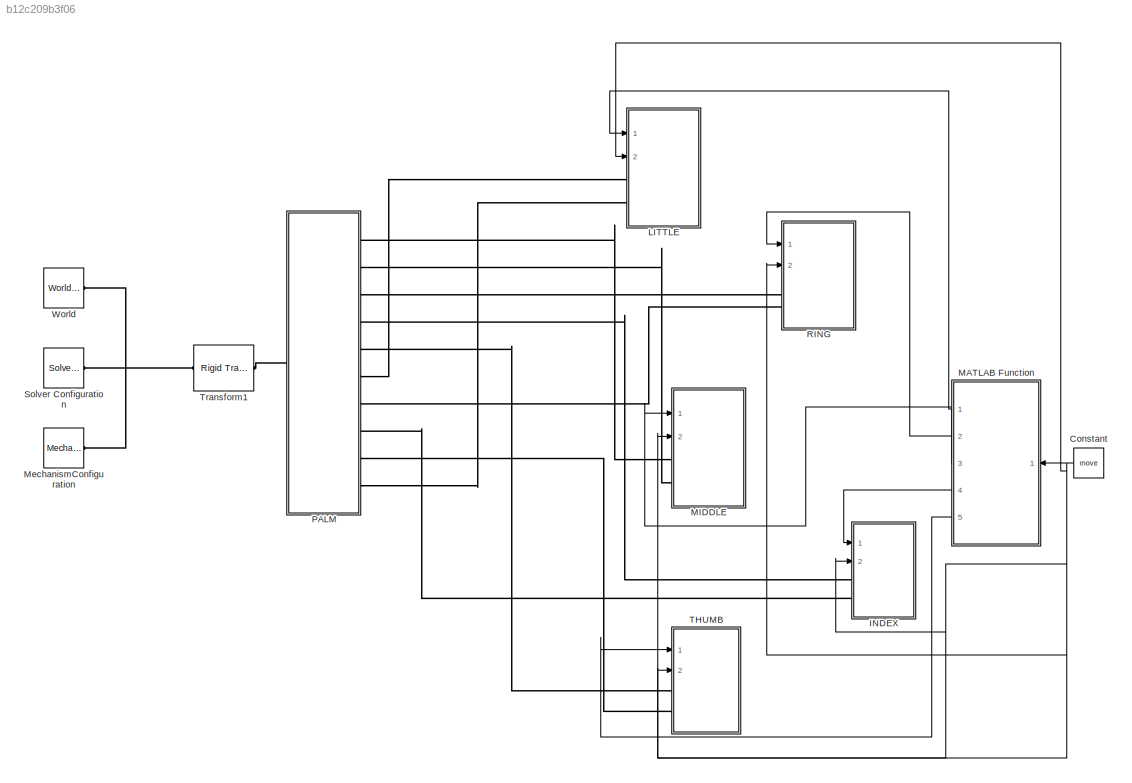
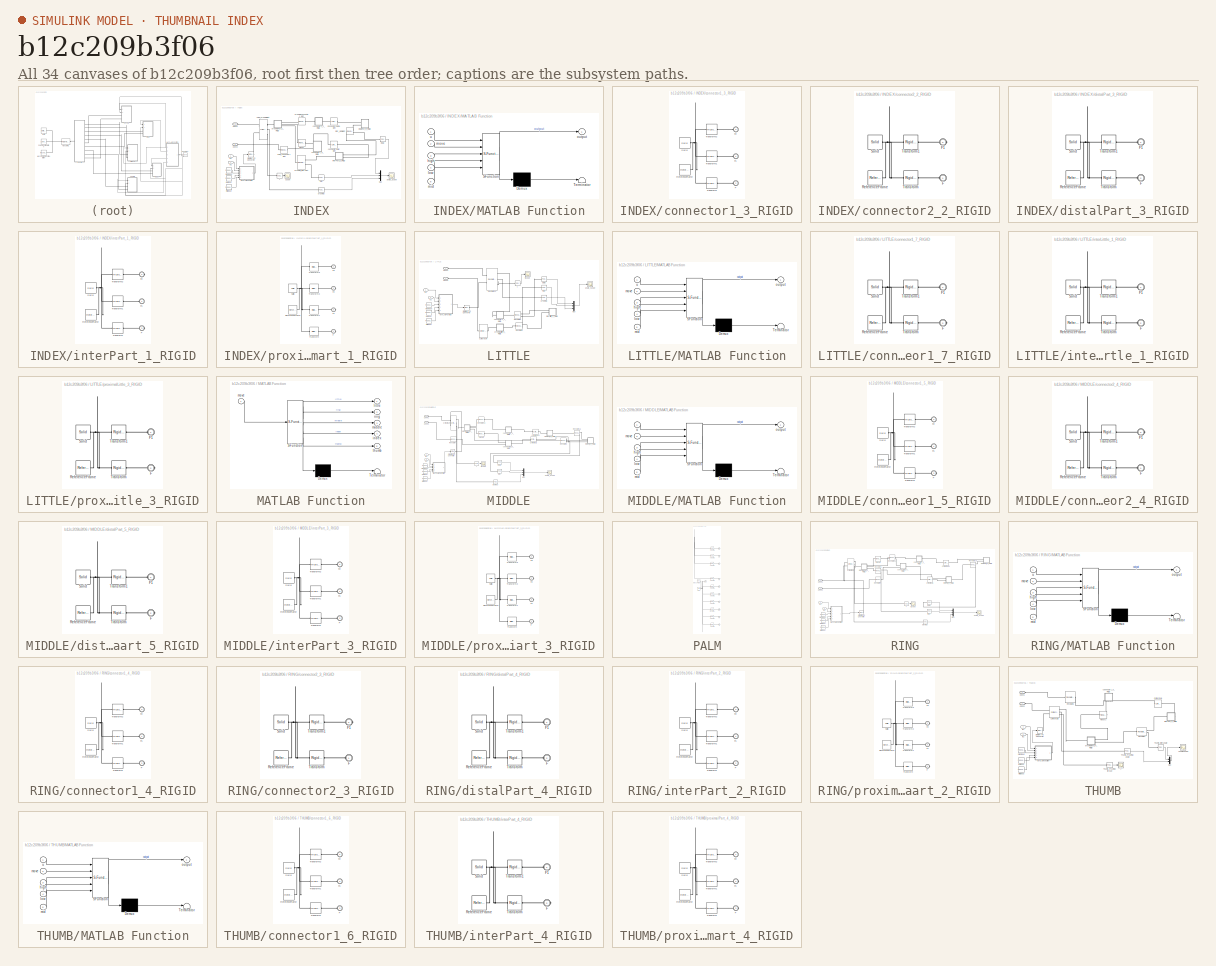
[diagram: thumbnail index - all 34 canvases of the model, root first then tree order]
MODEL slx_b12c209b3f06
KIND model
CONFIG AbsTol = auto
CONFIG EnableMultiTasking = off
CONFIG FixedStep = auto
CONFIG MaxStep = auto
CONFIG MinStep = auto
CONFIG PreLoadFcn = parameters;
CONFIG RelTol = 1e-3
CONFIG SampleTimeConstraint = Unconstrained
CONFIG Solver = VariableStepAuto
CONFIG SolverName = VariableStepAuto
CONFIG StartTime = 0.0
CONFIG StopTime = 10.0
WORKSPACE source: external: MATLAB File  (data not in archive)
BLOCK [Constant] Constant
  Value = move
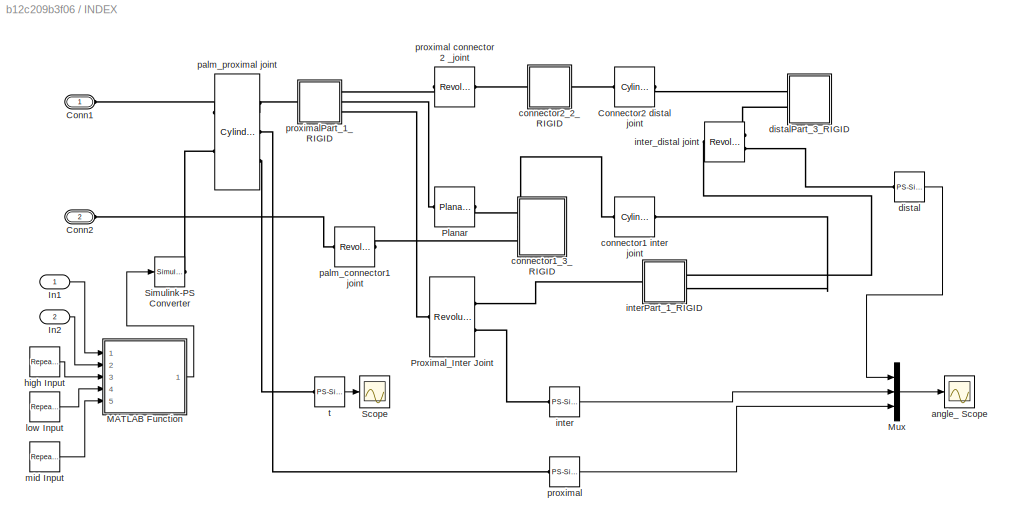
BLOCK [SubSystem] INDEX
  Ports = [2, 0, 0, 0, 0, 2]
  RequestExecContextInheritance = off
  Variant = off
BLOCK [PMIOPort] INDEX/Conn1
  Port = 1
  Side = Left
BLOCK [PMIOPort] INDEX/Conn2
  Port = 2
  Side = Left
BLOCK [Reference] INDEX/Connector2 distal joint  REF=sm_lib/Joints/Cylindrical
Joint
  Ports = [0, 0, 0, 0, 0, 1, 1]
  SourceBlock = sm_lib/Joints/Cylindrical\nJoint
  SourceProductBaseCode = MS
  SourceProductName = Simscape Multibody
  SourceType = Cylindrical\nJoint
BLOCK [Inport] INDEX/In1
  IconDisplay = Port number
BLOCK [Inport] INDEX/In2
  IconDisplay = Port number
  Port = 2
BLOCK [SubSystem] INDEX/MATLAB Function
  ErrorFcn = Stateflow.Translate.translate
  PermitHierarchicalResolution = ExplicitOnly
  Ports = [5, 1]
  RequestExecContextInheritance = off
  SFBlockType = MATLAB Function
  TreatAsAtomicUnit = on
  Variant = off
BLOCK [Demux] INDEX/MATLAB Function/ Demux 
  Outputs = 1
  Ports = [1, 1]
BLOCK [S-Function] INDEX/MATLAB Function/ SFunction 
  EnableBusSupport = on
  FunctionName = sf_sfun
  PortCounts = [5 2]
  Ports = [5, 2]
  SFcnIsStateOwnerBlock = off
  SFunctionDeploymentMode = off
  Tag = Stateflow S-Function hand 1
BLOCK [Terminator] INDEX/MATLAB Function/ Terminator 
BLOCK [Inport] INDEX/MATLAB Function/high
  IconDisplay = Port number
  Port = 3
BLOCK [Inport] INDEX/MATLAB Function/low
  IconDisplay = Port number
  Port = 4
BLOCK [Inport] INDEX/MATLAB Function/mid
  IconDisplay = Port number
  Port = 5
BLOCK [Inport] INDEX/MATLAB Function/move
  IconDisplay = Port number
  Port = 2
BLOCK [Outport] INDEX/MATLAB Function/output
  IconDisplay = Port number
BLOCK [Inport] INDEX/MATLAB Function/u
  IconDisplay = Port number
BLOCK [Mux] INDEX/Mux
  DisplayOption = bar
  Inputs = 3
  Ports = [3, 1]
BLOCK [Reference] INDEX/Planar  REF=sm_lib/Joints/Planar Joint
  Ports = [0, 0, 0, 0, 0, 1, 1]
  SourceBlock = sm_lib/Joints/Planar Joint
  SourceProductBaseCode = MS
  SourceProductName = Simscape Multibody
  SourceType = Planar Joint
BLOCK [Reference] INDEX/Proximal_Inter Joint  REF=sm_lib/Joints/Revolute Joint
  Ports = [0, 0, 0, 0, 0, 1, 2]
  SourceBlock = sm_lib/Joints/Revolute Joint
  SourceProductBaseCode = MS
  SourceProductName = Simscape Multibody
  SourceType = Revolute Joint
BLOCK [Scope] INDEX/Scope
  NumInputPorts = 1
  Ports = [1]
  ScopeSpecificationString = Simulink.scopes.TimeScopeBlockCfg('CurrentConfiguration', extmgr.ConfigurationSet(extmgr.Configuration('Core','General UI',true),extmgr.Configuration('Core','Source UI',true),extmgr.Configuration('Sources','WiredSimulink',true,'DataLoggingVariableName','ScopeData2'),extmgr.Configuration('Visuals','Time Domain',true,'SerializedDisplays',{struct('MinYLimReal','-53.26405','MaxYLimReal','5.92221','YLa...<+1433ch>
BLOCK [Reference] INDEX/Simulink-PS Converter  REF=nesl_utility/Simulink-PS
Converter
  Ports = [1, 0, 0, 0, 0, 0, 1]
  SourceBlock = nesl_utility/Simulink-PS\nConverter
  SourceProductBaseCode = SS
  SourceProductName = Simscape
  SourceType = Simulink-PS\nConverter
BLOCK [Scope] INDEX/angle_ Scope
  NumInputPorts = 1
  Ports = [1]
  ScopeSpecificationString = Simulink.scopes.TimeScopeBlockCfg('CurrentConfiguration', extmgr.ConfigurationSet(extmgr.Configuration('Core','General UI',true),extmgr.Configuration('Core','Source UI',true),extmgr.Configuration('Sources','WiredSimulink',true),extmgr.Configuration('Visuals','Time Domain',true,'SerializedDisplays',{struct('MinYLimReal','-210.17857','MaxYLimReal','91.60717','YLabelReal','','MinYLimMag',' 0.00000','...<+1411ch>
BLOCK [Reference] INDEX/connector1 inter joint  REF=sm_lib/Joints/Cylindrical
Joint
  Ports = [0, 0, 0, 0, 0, 1, 1]
  SourceBlock = sm_lib/Joints/Cylindrical\nJoint
  SourceProductBaseCode = MS
  SourceProductName = Simscape Multibody
  SourceType = Cylindrical\nJoint
BLOCK [SubSystem] INDEX/connector1_3_RIGID
  Ports = [0, 0, 0, 0, 0, 3]
  RequestExecContextInheritance = off
  Variant = off
BLOCK [PMIOPort] INDEX/connector1_3_RIGID/F
  Port = 2
  Side = Left
BLOCK [PMIOPort] INDEX/connector1_3_RIGID/F1
  Port = 1
  Side = Left
BLOCK [PMIOPort] INDEX/connector1_3_RIGID/F2
  Port = 3
  Side = Left
BLOCK [Reference] INDEX/connector1_3_RIGID/ReferenceFrame  REF=sm_lib/Frames and
Transforms/Reference
Frame
  Ports = [0, 0, 0, 0, 0, 0, 1]
  SourceBlock = sm_lib/Frames and\nTransforms/Reference\nFrame
  SourceProductBaseCode = MS
  SourceProductName = Simscape Multibody
  SourceType = Reference\nFrame
BLOCK [Reference] INDEX/connector1_3_RIGID/Solid  REF=sm_lib/Body Elements/Solid
  Ports = [0, 0, 0, 0, 0, 0, 1]
  SourceBlock = sm_lib/Body Elements/Solid
  SourceProductBaseCode = MS
  SourceProductName = Simscape Multibody
  SourceType = Solid
BLOCK [Reference] INDEX/connector1_3_RIGID/Transform  REF=sm_lib/Frames and
Transforms/Rigid
Transform
  Ports = [0, 0, 0, 0, 0, 1, 1]
  SourceBlock = sm_lib/Frames and\nTransforms/Rigid\nTransform
  SourceProductBaseCode = MS
  SourceProductName = Simscape Multibody
  SourceType = Rigid\nTransform
BLOCK [Reference] INDEX/connector1_3_RIGID/Transform1  REF=sm_lib/Frames and
Transforms/Rigid
Transform
  Ports = [0, 0, 0, 0, 0, 1, 1]
  SourceBlock = sm_lib/Frames and\nTransforms/Rigid\nTransform
  SourceProductBaseCode = MS
  SourceProductName = Simscape Multibody
  SourceType = Rigid\nTransform
BLOCK [Reference] INDEX/connector1_3_RIGID/Transform2  REF=sm_lib/Frames and
Transforms/Rigid
Transform
  Ports = [0, 0, 0, 0, 0, 1, 1]
  SourceBlock = sm_lib/Frames and\nTransforms/Rigid\nTransform
  SourceProductBaseCode = MS
  SourceProductName = Simscape Multibody
  SourceType = Rigid\nTransform
BLOCK [SubSystem] INDEX/connector2_2_RIGID
  Ports = [0, 0, 0, 0, 0, 1, 1]
  RequestExecContextInheritance = off
  Variant = off
BLOCK [PMIOPort] INDEX/connector2_2_RIGID/F
  Port = 1
  Side = Left
BLOCK [PMIOPort] INDEX/connector2_2_RIGID/F1
  Port = 2
  Side = Right
BLOCK [Reference] INDEX/connector2_2_RIGID/ReferenceFrame  REF=sm_lib/Frames and
Transforms/Reference
Frame
  Ports = [0, 0, 0, 0, 0, 0, 1]
  SourceBlock = sm_lib/Frames and\nTransforms/Reference\nFrame
  SourceProductBaseCode = MS
  SourceProductName = Simscape Multibody
  SourceType = Reference\nFrame
BLOCK [Reference] INDEX/connector2_2_RIGID/Solid  REF=sm_lib/Body Elements/Solid
  Ports = [0, 0, 0, 0, 0, 0, 1]
  SourceBlock = sm_lib/Body Elements/Solid
  SourceProductBaseCode = MS
  SourceProductName = Simscape Multibody
  SourceType = Solid
BLOCK [Reference] INDEX/connector2_2_RIGID/Transform  REF=sm_lib/Frames and
Transforms/Rigid
Transform
  Ports = [0, 0, 0, 0, 0, 1, 1]
  SourceBlock = sm_lib/Frames and\nTransforms/Rigid\nTransform
  SourceProductBaseCode = MS
  SourceProductName = Simscape Multibody
  SourceType = Rigid\nTransform
BLOCK [Reference] INDEX/connector2_2_RIGID/Transform1  REF=sm_lib/Frames and
Transforms/Rigid
Transform
  Ports = [0, 0, 0, 0, 0, 1, 1]
  SourceBlock = sm_lib/Frames and\nTransforms/Rigid\nTransform
  SourceProductBaseCode = MS
  SourceProductName = Simscape Multibody
  SourceType = Rigid\nTransform
BLOCK [Reference] INDEX/distal  REF=nesl_utility/PS-Simulink
Converter
  Ports = [0, 1, 0, 0, 0, 1]
  SourceBlock = nesl_utility/PS-Simulink\nConverter
  SourceProductBaseCode = SS
  SourceProductName = Simscape
  SourceType = PS-Simulink\nConverter
BLOCK [SubSystem] INDEX/distalPart_3_RIGID
  Ports = [0, 0, 0, 0, 0, 2]
  RequestExecContextInheritance = off
  Variant = off
BLOCK [PMIOPort] INDEX/distalPart_3_RIGID/F
  Port = 2
  Side = Left
BLOCK [PMIOPort] INDEX/distalPart_3_RIGID/F1
  Port = 1
  Side = Left
BLOCK [Reference] INDEX/distalPart_3_RIGID/ReferenceFrame  REF=sm_lib/Frames and
Transforms/Reference
Frame
  Ports = [0, 0, 0, 0, 0, 0, 1]
  SourceBlock = sm_lib/Frames and\nTransforms/Reference\nFrame
  SourceProductBaseCode = MS
  SourceProductName = Simscape Multibody
  SourceType = Reference\nFrame
BLOCK [Reference] INDEX/distalPart_3_RIGID/Solid  REF=sm_lib/Body Elements/Solid
  Ports = [0, 0, 0, 0, 0, 0, 1]
  SourceBlock = sm_lib/Body Elements/Solid
  SourceProductBaseCode = MS
  SourceProductName = Simscape Multibody
  SourceType = Solid
BLOCK [Reference] INDEX/distalPart_3_RIGID/Transform  REF=sm_lib/Frames and
Transforms/Rigid
Transform
  Ports = [0, 0, 0, 0, 0, 1, 1]
  SourceBlock = sm_lib/Frames and\nTransforms/Rigid\nTransform
  SourceProductBaseCode = MS
  SourceProductName = Simscape Multibody
  SourceType = Rigid\nTransform
BLOCK [Reference] INDEX/distalPart_3_RIGID/Transform1  REF=sm_lib/Frames and
Transforms/Rigid
Transform
  Ports = [0, 0, 0, 0, 0, 1, 1]
  SourceBlock = sm_lib/Frames and\nTransforms/Rigid\nTransform
  SourceProductBaseCode = MS
  SourceProductName = Simscape Multibody
  SourceType = Rigid\nTransform
BLOCK [Reference] INDEX/high Input  REF=simulink/Sources/Repeating
Sequence
  Ports = [0, 1]
  SourceBlock = simulink/Sources/Repeating\nSequence
  SourceProductBaseCode = SL
  SourceProductName = Simulink
  SourceType = Repeating table
BLOCK [Reference] INDEX/inter  REF=nesl_utility/PS-Simulink
Converter
  Ports = [0, 1, 0, 0, 0, 1]
  SourceBlock = nesl_utility/PS-Simulink\nConverter
  SourceProductBaseCode = SS
  SourceProductName = Simscape
  SourceType = PS-Simulink\nConverter
BLOCK [SubSystem] INDEX/interPart_1_RIGID
  Ports = [0, 0, 0, 0, 0, 1, 2]
  RequestExecContextInheritance = off
  Variant = off
BLOCK [PMIOPort] INDEX/interPart_1_RIGID/F
  Port = 3
  Side = Right
BLOCK [PMIOPort] INDEX/interPart_1_RIGID/F1
  Port = 1
  Side = Left
BLOCK [PMIOPort] INDEX/interPart_1_RIGID/F2
  Port = 2
  Side = Right
BLOCK [Reference] INDEX/interPart_1_RIGID/ReferenceFrame  REF=sm_lib/Frames and
Transforms/Reference
Frame
  Ports = [0, 0, 0, 0, 0, 0, 1]
  SourceBlock = sm_lib/Frames and\nTransforms/Reference\nFrame
  SourceProductBaseCode = MS
  SourceProductName = Simscape Multibody
  SourceType = Reference\nFrame
BLOCK [Reference] INDEX/interPart_1_RIGID/Solid  REF=sm_lib/Body Elements/Solid
  Ports = [0, 0, 0, 0, 0, 0, 1]
  SourceBlock = sm_lib/Body Elements/Solid
  SourceProductBaseCode = MS
  SourceProductName = Simscape Multibody
  SourceType = Solid
BLOCK [Reference] INDEX/interPart_1_RIGID/Transform  REF=sm_lib/Frames and
Transforms/Rigid
Transform
  Ports = [0, 0, 0, 0, 0, 1, 1]
  SourceBlock = sm_lib/Frames and\nTransforms/Rigid\nTransform
  SourceProductBaseCode = MS
  SourceProductName = Simscape Multibody
  SourceType = Rigid\nTransform
BLOCK [Reference] INDEX/interPart_1_RIGID/Transform1  REF=sm_lib/Frames and
Transforms/Rigid
Transform
  Ports = [0, 0, 0, 0, 0, 1, 1]
  SourceBlock = sm_lib/Frames and\nTransforms/Rigid\nTransform
  SourceProductBaseCode = MS
  SourceProductName = Simscape Multibody
  SourceType = Rigid\nTransform
BLOCK [Reference] INDEX/interPart_1_RIGID/Transform2  REF=sm_lib/Frames and
Transforms/Rigid
Transform
  Ports = [0, 0, 0, 0, 0, 1, 1]
  SourceBlock = sm_lib/Frames and\nTransforms/Rigid\nTransform
  SourceProductBaseCode = MS
  SourceProductName = Simscape Multibody
  SourceType = Rigid\nTransform
BLOCK [Reference] INDEX/inter_distal joint  REF=sm_lib/Joints/Revolute Joint
  Ports = [0, 0, 0, 0, 0, 1, 2]
  SourceBlock = sm_lib/Joints/Revolute Joint
  SourceProductBaseCode = MS
  SourceProductName = Simscape Multibody
  SourceType = Revolute Joint
BLOCK [Reference] INDEX/low Input  REF=simulink/Sources/Repeating
Sequence
  Ports = [0, 1]
  SourceBlock = simulink/Sources/Repeating\nSequence
  SourceProductBaseCode = SL
  SourceProductName = Simulink
  SourceType = Repeating table
BLOCK [Reference] INDEX/mid Input  REF=simulink/Sources/Repeating
Sequence
  Ports = [0, 1]
  SourceBlock = simulink/Sources/Repeating\nSequence
  SourceProductBaseCode = SL
  SourceProductName = Simulink
  SourceType = Repeating table
BLOCK [Reference] INDEX/palm_connector1 joint  REF=sm_lib/Joints/Revolute Joint
  Ports = [0, 0, 0, 0, 0, 1, 1]
  SourceBlock = sm_lib/Joints/Revolute Joint
  SourceProductBaseCode = MS
  SourceProductName = Simscape Multibody
  SourceType = Revolute Joint
BLOCK [Reference] INDEX/palm_proximal joint  REF=sm_lib/Joints/Cylindrical
Joint
  Ports = [0, 0, 0, 0, 0, 2, 3]
  SourceBlock = sm_lib/Joints/Cylindrical\nJoint
  SourceProductBaseCode = MS
  SourceProductName = Simscape Multibody
  SourceType = Cylindrical\nJoint
BLOCK [Reference] INDEX/proximal  REF=nesl_utility/PS-Simulink
Converter
  Ports = [0, 1, 0, 0, 0, 1]
  SourceBlock = nesl_utility/PS-Simulink\nConverter
  SourceProductBaseCode = SS
  SourceProductName = Simscape
  SourceType = PS-Simulink\nConverter
BLOCK [Reference] INDEX/proximal connector2 _joint  REF=sm_lib/Joints/Revolute Joint
  Ports = [0, 0, 0, 0, 0, 1, 1]
  SourceBlock = sm_lib/Joints/Revolute Joint
  SourceProductBaseCode = MS
  SourceProductName = Simscape Multibody
  SourceType = Revolute Joint
BLOCK [SubSystem] INDEX/proximalPart_1_RIGID
  Ports = [0, 0, 0, 0, 0, 1, 3]
  RequestExecContextInheritance = off
  Variant = off
BLOCK [PMIOPort] INDEX/proximalPart_1_RIGID/F
  Port = 4
  Side = Right
BLOCK [PMIOPort] INDEX/proximalPart_1_RIGID/F1
  Port = 3
  Side = Right
BLOCK [PMIOPort] INDEX/proximalPart_1_RIGID/F2
  Port = 2
  Side = Right
BLOCK [PMIOPort] INDEX/proximalPart_1_RIGID/F3
  Port = 1
  Side = Left
BLOCK [Reference] INDEX/proximalPart_1_RIGID/ReferenceFrame  REF=sm_lib/Frames and
Transforms/Reference
Frame
  Ports = [0, 0, 0, 0, 0, 0, 1]
  SourceBlock = sm_lib/Frames and\nTransforms/Reference\nFrame
  SourceProductBaseCode = MS
  SourceProductName = Simscape Multibody
  SourceType = Reference\nFrame
BLOCK [Reference] INDEX/proximalPart_1_RIGID/Solid  REF=sm_lib/Body Elements/Solid
  Ports = [0, 0, 0, 0, 0, 0, 1]
  SourceBlock = sm_lib/Body Elements/Solid
  SourceProductBaseCode = MS
  SourceProductName = Simscape Multibody
  SourceType = Solid
BLOCK [Reference] INDEX/proximalPart_1_RIGID/Transform  REF=sm_lib/Frames and
Transforms/Rigid
Transform
  Ports = [0, 0, 0, 0, 0, 1, 1]
  SourceBlock = sm_lib/Frames and\nTransforms/Rigid\nTransform
  SourceProductBaseCode = MS
  SourceProductName = Simscape Multibody
  SourceType = Rigid\nTransform
BLOCK [Reference] INDEX/proximalPart_1_RIGID/Transform1  REF=sm_lib/Frames and
Transforms/Rigid
Transform
  Ports = [0, 0, 0, 0, 0, 1, 1]
  SourceBlock = sm_lib/Frames and\nTransforms/Rigid\nTransform
  SourceProductBaseCode = MS
  SourceProductName = Simscape Multibody
  SourceType = Rigid\nTransform
BLOCK [Reference] INDEX/proximalPart_1_RIGID/Transform2  REF=sm_lib/Frames and
Transforms/Rigid
Transform
  Ports = [0, 0, 0, 0, 0, 1, 1]
  SourceBlock = sm_lib/Frames and\nTransforms/Rigid\nTransform
  SourceProductBaseCode = MS
  SourceProductName = Simscape Multibody
  SourceType = Rigid\nTransform
BLOCK [Reference] INDEX/proximalPart_1_RIGID/Transform3  REF=sm_lib/Frames and
Transforms/Rigid
Transform
  Ports = [0, 0, 0, 0, 0, 1, 1]
  SourceBlock = sm_lib/Frames and\nTransforms/Rigid\nTransform
  SourceProductBaseCode = MS
  SourceProductName = Simscape Multibody
  SourceType = Rigid\nTransform
BLOCK [Reference] INDEX/t  REF=nesl_utility/PS-Simulink
Converter
  Ports = [0, 1, 0, 0, 0, 1]
  SourceBlock = nesl_utility/PS-Simulink\nConverter
  SourceProductBaseCode = SS
  SourceProductName = Simscape
  SourceType = PS-Simulink\nConverter
BLOCK [SubSystem] LITTLE
  Ports = [2, 0, 0, 0, 0, 2]
  RequestExecContextInheritance = off
  Variant = off
BLOCK [PMIOPort] LITTLE/Conn1
  Port = 1
  Side = Left
BLOCK [PMIOPort] LITTLE/Conn2
  Port = 2
  Side = Left
BLOCK [Reference] LITTLE/Cylindrical4  REF=sm_lib/Joints/Cylindrical
Joint
  Ports = [0, 0, 0, 0, 0, 1, 1]
  SourceBlock = sm_lib/Joints/Cylindrical\nJoint
  SourceProductBaseCode = MS
  SourceProductName = Simscape Multibody
  SourceType = Cylindrical\nJoint
BLOCK [Inport] LITTLE/In1
  IconDisplay = Port number
BLOCK [Inport] LITTLE/In2
  IconDisplay = Port number
  Port = 2
BLOCK [SubSystem] LITTLE/MATLAB Function
  ErrorFcn = Stateflow.Translate.translate
  PermitHierarchicalResolution = ExplicitOnly
  Ports = [5, 1]
  RequestExecContextInheritance = off
  SFBlockType = MATLAB Function
  TreatAsAtomicUnit = on
  Variant = off
BLOCK [Demux] LITTLE/MATLAB Function/ Demux 
  Outputs = 1
  Ports = [1, 1]
BLOCK [S-Function] LITTLE/MATLAB Function/ SFunction 
  EnableBusSupport = on
  FunctionName = sf_sfun
  PortCounts = [5 2]
  Ports = [5, 2]
  SFcnIsStateOwnerBlock = off
  SFunctionDeploymentMode = off
  Tag = Stateflow S-Function hand 5
BLOCK [Terminator] LITTLE/MATLAB Function/ Terminator 
BLOCK [Inport] LITTLE/MATLAB Function/high
  IconDisplay = Port number
  Port = 3
BLOCK [Inport] LITTLE/MATLAB Function/low
  IconDisplay = Port number
  Port = 4
BLOCK [Inport] LITTLE/MATLAB Function/mid
  IconDisplay = Port number
  Port = 5
BLOCK [Inport] LITTLE/MATLAB Function/move
  IconDisplay = Port number
  Port = 2
BLOCK [Outport] LITTLE/MATLAB Function/output
  IconDisplay = Port number
BLOCK [Inport] LITTLE/MATLAB Function/u
  IconDisplay = Port number
BLOCK [Mux] LITTLE/Mux
  DisplayOption = bar
  Inputs = 3
  Ports = [3, 1]
BLOCK [Reference] LITTLE/Revolute10  REF=sm_lib/Joints/Revolute Joint
  Ports = [0, 0, 0, 0, 0, 2, 3]
  SourceBlock = sm_lib/Joints/Revolute Joint
  SourceProductBaseCode = MS
  SourceProductName = Simscape Multibody
  SourceType = Revolute Joint
BLOCK [Reference] LITTLE/Revolute4  REF=sm_lib/Joints/Revolute Joint
  Ports = [0, 0, 0, 0, 0, 1, 2]
  SourceBlock = sm_lib/Joints/Revolute Joint
  SourceProductBaseCode = MS
  SourceProductName = Simscape Multibody
  SourceType = Revolute Joint
BLOCK [Reference] LITTLE/Revolute9  REF=sm_lib/Joints/Revolute Joint
  Ports = [0, 0, 0, 0, 0, 1, 2]
  SourceBlock = sm_lib/Joints/Revolute Joint
  SourceProductBaseCode = MS
  SourceProductName = Simscape Multibody
  SourceType = Revolute Joint
BLOCK [Reference] LITTLE/Simulink-PS Converter  REF=nesl_utility/Simulink-PS
Converter
  Ports = [1, 0, 0, 0, 0, 0, 1]
  SourceBlock = nesl_utility/Simulink-PS\nConverter
  SourceProductBaseCode = SS
  SourceProductName = Simscape
  SourceType = Simulink-PS\nConverter
BLOCK [Scope] LITTLE/angle_ Scope
  NumInputPorts = 1
  Ports = [1]
  ScopeSpecificationString = Simulink.scopes.TimeScopeBlockCfg('CurrentConfiguration', extmgr.ConfigurationSet(extmgr.Configuration('Core','General UI',true),extmgr.Configuration('Core','Source UI',true),extmgr.Configuration('Sources','WiredSimulink',true,'DataLoggingVariableName','ScopeData7'),extmgr.Configuration('Visuals','Time Domain',true,'SerializedDisplays',{struct('MinYLimReal','-212.80256','MaxYLimReal','115.22304','...<+1452ch>
BLOCK [SubSystem] LITTLE/connector1_7_RIGID
  Ports = [0, 0, 0, 0, 0, 1, 1]
  RequestExecContextInheritance = off
  Variant = off
BLOCK [PMIOPort] LITTLE/connector1_7_RIGID/F
  Port = 2
  Side = Right
BLOCK [PMIOPort] LITTLE/connector1_7_RIGID/F1
  Port = 1
  Side = Left
BLOCK [Reference] LITTLE/connector1_7_RIGID/ReferenceFrame  REF=sm_lib/Frames and
Transforms/Reference
Frame
  Ports = [0, 0, 0, 0, 0, 0, 1]
  SourceBlock = sm_lib/Frames and\nTransforms/Reference\nFrame
  SourceProductBaseCode = MS
  SourceProductName = Simscape Multibody
  SourceType = Reference\nFrame
BLOCK [Reference] LITTLE/connector1_7_RIGID/Solid  REF=sm_lib/Body Elements/Solid
  Ports = [0, 0, 0, 0, 0, 0, 1]
  SourceBlock = sm_lib/Body Elements/Solid
  SourceProductBaseCode = MS
  SourceProductName = Simscape Multibody
  SourceType = Solid
BLOCK [Reference] LITTLE/connector1_7_RIGID/Transform  REF=sm_lib/Frames and
Transforms/Rigid
Transform
  Ports = [0, 0, 0, 0, 0, 1, 1]
  SourceBlock = sm_lib/Frames and\nTransforms/Rigid\nTransform
  SourceProductBaseCode = MS
  SourceProductName = Simscape Multibody
  SourceType = Rigid\nTransform
BLOCK [Reference] LITTLE/connector1_7_RIGID/Transform1  REF=sm_lib/Frames and
Transforms/Rigid
Transform
  Ports = [0, 0, 0, 0, 0, 1, 1]
  SourceBlock = sm_lib/Frames and\nTransforms/Rigid\nTransform
  SourceProductBaseCode = MS
  SourceProductName = Simscape Multibody
  SourceType = Rigid\nTransform
BLOCK [Reference] LITTLE/distal  REF=nesl_utility/PS-Simulink
Converter
  Ports = [0, 1, 0, 0, 0, 1]
  SourceBlock = nesl_utility/PS-Simulink\nConverter
  SourceProductBaseCode = SS
  SourceProductName = Simscape
  SourceType = PS-Simulink\nConverter
BLOCK [Reference] LITTLE/high Input  REF=simulink/Sources/Repeating
Sequence
  Ports = [0, 1]
  SourceBlock = simulink/Sources/Repeating\nSequence
  SourceProductBaseCode = SL
  SourceProductName = Simulink
  SourceType = Repeating table
BLOCK [Reference] LITTLE/inter  REF=nesl_utility/PS-Simulink
Converter
  Ports = [0, 1, 0, 0, 0, 1]
  SourceBlock = nesl_utility/PS-Simulink\nConverter
  SourceProductBaseCode = SS
  SourceProductName = Simscape
  SourceType = PS-Simulink\nConverter
BLOCK [SubSystem] LITTLE/interLitttle_1_RIGID
  Ports = [0, 0, 0, 0, 0, 2]
  RequestExecContextInheritance = off
  Variant = off
BLOCK [PMIOPort] LITTLE/interLitttle_1_RIGID/F
  Port = 2
  Side = Left
BLOCK [PMIOPort] LITTLE/interLitttle_1_RIGID/F1
  Port = 1
  Side = Left
BLOCK [Reference] LITTLE/interLitttle_1_RIGID/ReferenceFrame  REF=sm_lib/Frames and
Transforms/Reference
Frame
  Ports = [0, 0, 0, 0, 0, 0, 1]
  SourceBlock = sm_lib/Frames and\nTransforms/Reference\nFrame
  SourceProductBaseCode = MS
  SourceProductName = Simscape Multibody
  SourceType = Reference\nFrame
BLOCK [Reference] LITTLE/interLitttle_1_RIGID/Solid  REF=sm_lib/Body Elements/Solid
  Ports = [0, 0, 0, 0, 0, 0, 1]
  SourceBlock = sm_lib/Body Elements/Solid
  SourceProductBaseCode = MS
  SourceProductName = Simscape Multibody
  SourceType = Solid
BLOCK [Reference] LITTLE/interLitttle_1_RIGID/Transform  REF=sm_lib/Frames and
Transforms/Rigid
Transform
  Ports = [0, 0, 0, 0, 0, 1, 1]
  SourceBlock = sm_lib/Frames and\nTransforms/Rigid\nTransform
  SourceProductBaseCode = MS
  SourceProductName = Simscape Multibody
  SourceType = Rigid\nTransform
BLOCK [Reference] LITTLE/interLitttle_1_RIGID/Transform1  REF=sm_lib/Frames and
Transforms/Rigid
Transform
  Ports = [0, 0, 0, 0, 0, 1, 1]
  SourceBlock = sm_lib/Frames and\nTransforms/Rigid\nTransform
  SourceProductBaseCode = MS
  SourceProductName = Simscape Multibody
  SourceType = Rigid\nTransform
BLOCK [Reference] LITTLE/low Input  REF=simulink/Sources/Repeating
Sequence
  Ports = [0, 1]
  SourceBlock = simulink/Sources/Repeating\nSequence
  SourceProductBaseCode = SL
  SourceProductName = Simulink
  SourceType = Repeating table
BLOCK [Reference] LITTLE/mid Input  REF=simulink/Sources/Repeating
Sequence
  Ports = [0, 1]
  SourceBlock = simulink/Sources/Repeating\nSequence
  SourceProductBaseCode = SL
  SourceProductName = Simulink
  SourceType = Repeating table
BLOCK [Reference] LITTLE/proximal  REF=nesl_utility/PS-Simulink
Converter
  Ports = [0, 1, 0, 0, 0, 1]
  SourceBlock = nesl_utility/PS-Simulink\nConverter
  SourceProductBaseCode = SS
  SourceProductName = Simscape
  SourceType = PS-Simulink\nConverter
BLOCK [SubSystem] LITTLE/proximalLittle_3_RIGID
  Ports = [0, 0, 0, 0, 0, 1, 1]
  RequestExecContextInheritance = off
  Variant = off
BLOCK [PMIOPort] LITTLE/proximalLittle_3_RIGID/F
  Port = 2
  Side = Right
BLOCK [PMIOPort] LITTLE/proximalLittle_3_RIGID/F1
  Port = 1
  Side = Left
BLOCK [Reference] LITTLE/proximalLittle_3_RIGID/ReferenceFrame  REF=sm_lib/Frames and
Transforms/Reference
Frame
  Ports = [0, 0, 0, 0, 0, 0, 1]
  SourceBlock = sm_lib/Frames and\nTransforms/Reference\nFrame
  SourceProductBaseCode = MS
  SourceProductName = Simscape Multibody
  SourceType = Reference\nFrame
BLOCK [Reference] LITTLE/proximalLittle_3_RIGID/Solid  REF=sm_lib/Body Elements/Solid
  Ports = [0, 0, 0, 0, 0, 0, 1]
  SourceBlock = sm_lib/Body Elements/Solid
  SourceProductBaseCode = MS
  SourceProductName = Simscape Multibody
  SourceType = Solid
BLOCK [Reference] LITTLE/proximalLittle_3_RIGID/Transform  REF=sm_lib/Frames and
Transforms/Rigid
Transform
  Ports = [0, 0, 0, 0, 0, 1, 1]
  SourceBlock = sm_lib/Frames and\nTransforms/Rigid\nTransform
  SourceProductBaseCode = MS
  SourceProductName = Simscape Multibody
  SourceType = Rigid\nTransform
BLOCK [Reference] LITTLE/proximalLittle_3_RIGID/Transform1  REF=sm_lib/Frames and
Transforms/Rigid
Transform
  Ports = [0, 0, 0, 0, 0, 1, 1]
  SourceBlock = sm_lib/Frames and\nTransforms/Rigid\nTransform
  SourceProductBaseCode = MS
  SourceProductName = Simscape Multibody
  SourceType = Rigid\nTransform
BLOCK [Reference] LITTLE/t  REF=nesl_utility/PS-Simulink
Converter
  Ports = [0, 1, 0, 0, 0, 1]
  SourceBlock = nesl_utility/PS-Simulink\nConverter
  SourceProductBaseCode = SS
  SourceProductName = Simscape
  SourceType = PS-Simulink\nConverter
BLOCK [Scope] LITTLE/t Scope
  NumInputPorts = 1
  Ports = [1]
  ScopeSpecificationString = Simulink.scopes.TimeScopeBlockCfg('CurrentConfiguration', extmgr.ConfigurationSet(extmgr.Configuration('Core','General UI',true),extmgr.Configuration('Core','Source UI',true),extmgr.Configuration('Sources','WiredSimulink',true,'DataLoggingVariableName','ScopeData8'),extmgr.Configuration('Visuals','Time Domain',true,'SerializedDisplays',{struct('MinYLimReal','-0.00013','MaxYLimReal','0.0011','YLabe...<+1476ch>
BLOCK [SubSystem] MATLAB Function
  ErrorFcn = Stateflow.Translate.translate
  PermitHierarchicalResolution = ExplicitOnly
  Ports = [1, 5]
  RequestExecContextInheritance = off
  SFBlockType = MATLAB Function
  TreatAsAtomicUnit = on
  Variant = off
BLOCK [Demux] MATLAB Function/ Demux 
  Outputs = 1
  Ports = [1, 1]
BLOCK [S-Function] MATLAB Function/ SFunction 
  EnableBusSupport = on
  FunctionName = sf_sfun
  PortCounts = [1 6]
  Ports = [1, 6]
  SFcnIsStateOwnerBlock = off
  SFunctionDeploymentMode = off
  Tag = Stateflow S-Function hand 2
BLOCK [Terminator] MATLAB Function/ Terminator 
BLOCK [Outport] MATLAB Function/index
  IconDisplay = Port number
  Port = 4
BLOCK [Outport] MATLAB Function/little
  IconDisplay = Port number
BLOCK [Outport] MATLAB Function/middle
  IconDisplay = Port number
  Port = 3
BLOCK [Inport] MATLAB Function/move
  IconDisplay = Port number
BLOCK [Outport] MATLAB Function/ring
  IconDisplay = Port number
  Port = 2
BLOCK [Outport] MATLAB Function/thumb
  IconDisplay = Port number
  Port = 5
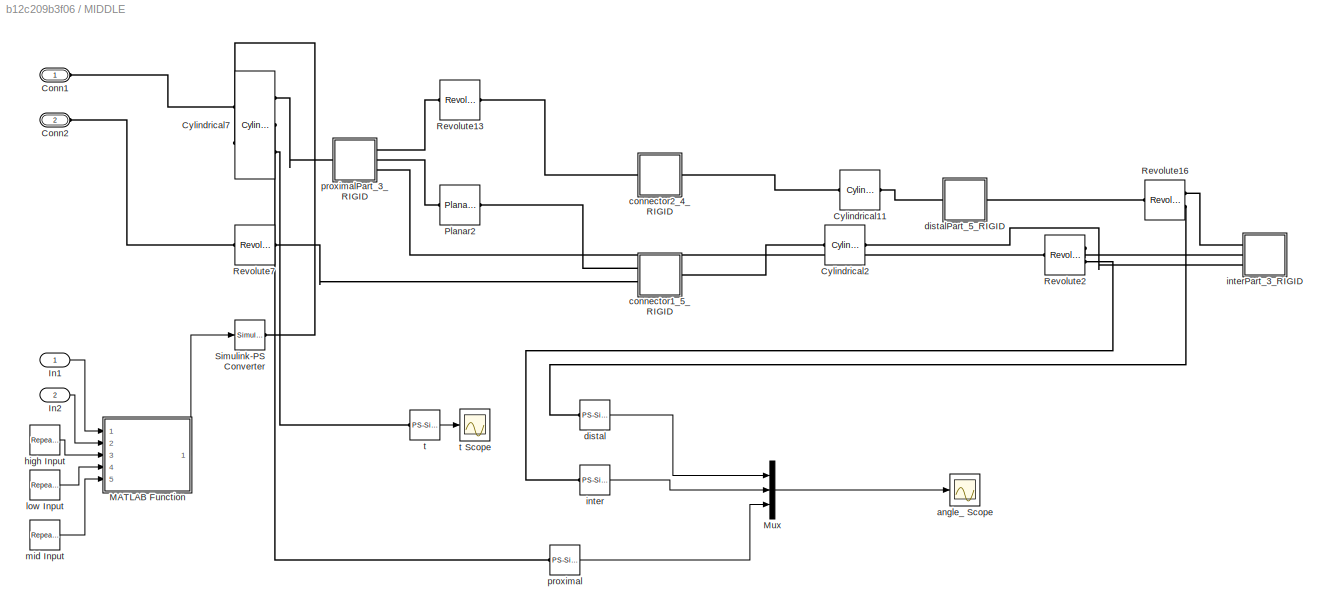
BLOCK [SubSystem] MIDDLE
  Ports = [2, 0, 0, 0, 0, 2]
  RequestExecContextInheritance = off
  Variant = off
BLOCK [PMIOPort] MIDDLE/Conn1
  Port = 1
  Side = Left
BLOCK [PMIOPort] MIDDLE/Conn2
  Port = 2
  Side = Left
BLOCK [Reference] MIDDLE/Cylindrical11  REF=sm_lib/Joints/Cylindrical
Joint
  Ports = [0, 0, 0, 0, 0, 1, 1]
  SourceBlock = sm_lib/Joints/Cylindrical\nJoint
  SourceProductBaseCode = MS
  SourceProductName = Simscape Multibody
  SourceType = Cylindrical\nJoint
BLOCK [Reference] MIDDLE/Cylindrical2  REF=sm_lib/Joints/Cylindrical
Joint
  Ports = [0, 0, 0, 0, 0, 1, 1]
  SourceBlock = sm_lib/Joints/Cylindrical\nJoint
  SourceProductBaseCode = MS
  SourceProductName = Simscape Multibody
  SourceType = Cylindrical\nJoint
BLOCK [Reference] MIDDLE/Cylindrical7  REF=sm_lib/Joints/Cylindrical
Joint
  Ports = [0, 0, 0, 0, 0, 2, 3]
  SourceBlock = sm_lib/Joints/Cylindrical\nJoint
  SourceProductBaseCode = MS
  SourceProductName = Simscape Multibody
  SourceType = Cylindrical\nJoint
BLOCK [Inport] MIDDLE/In1
  IconDisplay = Port number
BLOCK [Inport] MIDDLE/In2
  IconDisplay = Port number
  Port = 2
BLOCK [SubSystem] MIDDLE/MATLAB Function
  ErrorFcn = Stateflow.Translate.translate
  PermitHierarchicalResolution = ExplicitOnly
  Ports = [5, 1]
  RequestExecContextInheritance = off
  SFBlockType = MATLAB Function
  TreatAsAtomicUnit = on
  Variant = off
BLOCK [Demux] MIDDLE/MATLAB Function/ Demux 
  Outputs = 1
  Ports = [1, 1]
BLOCK [S-Function] MIDDLE/MATLAB Function/ SFunction 
  EnableBusSupport = on
  FunctionName = sf_sfun
  PortCounts = [5 2]
  Ports = [5, 2]
  SFcnIsStateOwnerBlock = off
  SFunctionDeploymentMode = off
  Tag = Stateflow S-Function hand 3
BLOCK [Terminator] MIDDLE/MATLAB Function/ Terminator 
BLOCK [Inport] MIDDLE/MATLAB Function/high
  IconDisplay = Port number
  Port = 3
BLOCK [Inport] MIDDLE/MATLAB Function/low
  IconDisplay = Port number
  Port = 4
BLOCK [Inport] MIDDLE/MATLAB Function/mid
  IconDisplay = Port number
  Port = 5
BLOCK [Inport] MIDDLE/MATLAB Function/move
  IconDisplay = Port number
  Port = 2
BLOCK [Outport] MIDDLE/MATLAB Function/output
  IconDisplay = Port number
BLOCK [Inport] MIDDLE/MATLAB Function/u
  IconDisplay = Port number
BLOCK [Mux] MIDDLE/Mux
  DisplayOption = bar
  Inputs = 3
  Ports = [3, 1]
BLOCK [Reference] MIDDLE/Planar2  REF=sm_lib/Joints/Planar Joint
  Ports = [0, 0, 0, 0, 0, 1, 1]
  SourceBlock = sm_lib/Joints/Planar Joint
  SourceProductBaseCode = MS
  SourceProductName = Simscape Multibody
  SourceType = Planar Joint
BLOCK [Reference] MIDDLE/Revolute13  REF=sm_lib/Joints/Revolute Joint
  Ports = [0, 0, 0, 0, 0, 1, 1]
  SourceBlock = sm_lib/Joints/Revolute Joint
  SourceProductBaseCode = MS
  SourceProductName = Simscape Multibody
  SourceType = Revolute Joint
BLOCK [Reference] MIDDLE/Revolute16  REF=sm_lib/Joints/Revolute Joint
  Ports = [0, 0, 0, 0, 0, 1, 2]
  SourceBlock = sm_lib/Joints/Revolute Joint
  SourceProductBaseCode = MS
  SourceProductName = Simscape Multibody
  SourceType = Revolute Joint
BLOCK [Reference] MIDDLE/Revolute2  REF=sm_lib/Joints/Revolute Joint
  Ports = [0, 0, 0, 0, 0, 1, 2]
  SourceBlock = sm_lib/Joints/Revolute Joint
  SourceProductBaseCode = MS
  SourceProductName = Simscape Multibody
  SourceType = Revolute Joint
BLOCK [Reference] MIDDLE/Revolute7  REF=sm_lib/Joints/Revolute Joint
  Ports = [0, 0, 0, 0, 0, 1, 1]
  SourceBlock = sm_lib/Joints/Revolute Joint
  SourceProductBaseCode = MS
  SourceProductName = Simscape Multibody
  SourceType = Revolute Joint
BLOCK [Reference] MIDDLE/Simulink-PS Converter  REF=nesl_utility/Simulink-PS
Converter
  Ports = [1, 0, 0, 0, 0, 0, 1]
  SourceBlock = nesl_utility/Simulink-PS\nConverter
  SourceProductBaseCode = SS
  SourceProductName = Simscape
  SourceType = Simulink-PS\nConverter
BLOCK [Scope] MIDDLE/angle_ Scope
  NumInputPorts = 1
  Ports = [1]
  ScopeSpecificationString = Simulink.scopes.TimeScopeBlockCfg('CurrentConfiguration', extmgr.ConfigurationSet(extmgr.Configuration('Core','General UI',true),extmgr.Configuration('Core','Source UI',true),extmgr.Configuration('Sources','WiredSimulink',true,'DataLoggingVariableName','ScopeData3'),extmgr.Configuration('Visuals','Time Domain',true,'SerializedDisplays',{struct('MinYLimReal','-209.97745','MaxYLimReal','89.79704','Y...<+1450ch>
BLOCK [SubSystem] MIDDLE/connector1_5_RIGID
  Ports = [0, 0, 0, 0, 0, 2, 1]
  RequestExecContextInheritance = off
  Variant = off
BLOCK [PMIOPort] MIDDLE/connector1_5_RIGID/F
  Port = 3
  Side = Right
BLOCK [PMIOPort] MIDDLE/connector1_5_RIGID/F1
  Port = 1
  Side = Left
BLOCK [PMIOPort] MIDDLE/connector1_5_RIGID/F2
  Port = 2
  Side = Left
BLOCK [Reference] MIDDLE/connector1_5_RIGID/ReferenceFrame  REF=sm_lib/Frames and
Transforms/Reference
Frame
  Ports = [0, 0, 0, 0, 0, 0, 1]
  SourceBlock = sm_lib/Frames and\nTransforms/Reference\nFrame
  SourceProductBaseCode = MS
  SourceProductName = Simscape Multibody
  SourceType = Reference\nFrame
BLOCK [Reference] MIDDLE/connector1_5_RIGID/Solid  REF=sm_lib/Body Elements/Solid
  Ports = [0, 0, 0, 0, 0, 0, 1]
  SourceBlock = sm_lib/Body Elements/Solid
  SourceProductBaseCode = MS
  SourceProductName = Simscape Multibody
  SourceType = Solid
BLOCK [Reference] MIDDLE/connector1_5_RIGID/Transform  REF=sm_lib/Frames and
Transforms/Rigid
Transform
  Ports = [0, 0, 0, 0, 0, 1, 1]
  SourceBlock = sm_lib/Frames and\nTransforms/Rigid\nTransform
  SourceProductBaseCode = MS
  SourceProductName = Simscape Multibody
  SourceType = Rigid\nTransform
BLOCK [Reference] MIDDLE/connector1_5_RIGID/Transform1  REF=sm_lib/Frames and
Transforms/Rigid
Transform
  Ports = [0, 0, 0, 0, 0, 1, 1]
  SourceBlock = sm_lib/Frames and\nTransforms/Rigid\nTransform
  SourceProductBaseCode = MS
  SourceProductName = Simscape Multibody
  SourceType = Rigid\nTransform
BLOCK [Reference] MIDDLE/connector1_5_RIGID/Transform2  REF=sm_lib/Frames and
Transforms/Rigid
Transform
  Ports = [0, 0, 0, 0, 0, 1, 1]
  SourceBlock = sm_lib/Frames and\nTransforms/Rigid\nTransform
  SourceProductBaseCode = MS
  SourceProductName = Simscape Multibody
  SourceType = Rigid\nTransform
BLOCK [SubSystem] MIDDLE/connector2_4_RIGID
  Ports = [0, 0, 0, 0, 0, 1, 1]
  RequestExecContextInheritance = off
  Variant = off
BLOCK [PMIOPort] MIDDLE/connector2_4_RIGID/F
  Port = 1
  Side = Left
BLOCK [PMIOPort] MIDDLE/connector2_4_RIGID/F1
  Port = 2
  Side = Right
BLOCK [Reference] MIDDLE/connector2_4_RIGID/ReferenceFrame  REF=sm_lib/Frames and
Transforms/Reference
Frame
  Ports = [0, 0, 0, 0, 0, 0, 1]
  SourceBlock = sm_lib/Frames and\nTransforms/Reference\nFrame
  SourceProductBaseCode = MS
  SourceProductName = Simscape Multibody
  SourceType = Reference\nFrame
BLOCK [Reference] MIDDLE/connector2_4_RIGID/Solid  REF=sm_lib/Body Elements/Solid
  Ports = [0, 0, 0, 0, 0, 0, 1]
  SourceBlock = sm_lib/Body Elements/Solid
  SourceProductBaseCode = MS
  SourceProductName = Simscape Multibody
  SourceType = Solid
BLOCK [Reference] MIDDLE/connector2_4_RIGID/Transform  REF=sm_lib/Frames and
Transforms/Rigid
Transform
  Ports = [0, 0, 0, 0, 0, 1, 1]
  SourceBlock = sm_lib/Frames and\nTransforms/Rigid\nTransform
  SourceProductBaseCode = MS
  SourceProductName = Simscape Multibody
  SourceType = Rigid\nTransform
BLOCK [Reference] MIDDLE/connector2_4_RIGID/Transform1  REF=sm_lib/Frames and
Transforms/Rigid
Transform
  Ports = [0, 0, 0, 0, 0, 1, 1]
  SourceBlock = sm_lib/Frames and\nTransforms/Rigid\nTransform
  SourceProductBaseCode = MS
  SourceProductName = Simscape Multibody
  SourceType = Rigid\nTransform
BLOCK [Reference] MIDDLE/distal  REF=nesl_utility/PS-Simulink
Converter
  Ports = [0, 1, 0, 0, 0, 1]
  SourceBlock = nesl_utility/PS-Simulink\nConverter
  SourceProductBaseCode = SS
  SourceProductName = Simscape
  SourceType = PS-Simulink\nConverter
BLOCK [SubSystem] MIDDLE/distalPart_5_RIGID
  Ports = [0, 0, 0, 0, 0, 1, 1]
  RequestExecContextInheritance = off
  Variant = off
BLOCK [PMIOPort] MIDDLE/distalPart_5_RIGID/F
  Port = 2
  Side = Right
BLOCK [PMIOPort] MIDDLE/distalPart_5_RIGID/F1
  Port = 1
  Side = Left
BLOCK [Reference] MIDDLE/distalPart_5_RIGID/ReferenceFrame  REF=sm_lib/Frames and
Transforms/Reference
Frame
  Ports = [0, 0, 0, 0, 0, 0, 1]
  SourceBlock = sm_lib/Frames and\nTransforms/Reference\nFrame
  SourceProductBaseCode = MS
  SourceProductName = Simscape Multibody
  SourceType = Reference\nFrame
BLOCK [Reference] MIDDLE/distalPart_5_RIGID/Solid  REF=sm_lib/Body Elements/Solid
  Ports = [0, 0, 0, 0, 0, 0, 1]
  SourceBlock = sm_lib/Body Elements/Solid
  SourceProductBaseCode = MS
  SourceProductName = Simscape Multibody
  SourceType = Solid
BLOCK [Reference] MIDDLE/distalPart_5_RIGID/Transform  REF=sm_lib/Frames and
Transforms/Rigid
Transform
  Ports = [0, 0, 0, 0, 0, 1, 1]
  SourceBlock = sm_lib/Frames and\nTransforms/Rigid\nTransform
  SourceProductBaseCode = MS
  SourceProductName = Simscape Multibody
  SourceType = Rigid\nTransform
BLOCK [Reference] MIDDLE/distalPart_5_RIGID/Transform1  REF=sm_lib/Frames and
Transforms/Rigid
Transform
  Ports = [0, 0, 0, 0, 0, 1, 1]
  SourceBlock = sm_lib/Frames and\nTransforms/Rigid\nTransform
  SourceProductBaseCode = MS
  SourceProductName = Simscape Multibody
  SourceType = Rigid\nTransform
BLOCK [Reference] MIDDLE/high Input  REF=simulink/Sources/Repeating
Sequence
  Ports = [0, 1]
  SourceBlock = simulink/Sources/Repeating\nSequence
  SourceProductBaseCode = SL
  SourceProductName = Simulink
  SourceType = Repeating table
BLOCK [Reference] MIDDLE/inter  REF=nesl_utility/PS-Simulink
Converter
  Ports = [0, 1, 0, 0, 0, 1]
  SourceBlock = nesl_utility/PS-Simulink\nConverter
  SourceProductBaseCode = SS
  SourceProductName = Simscape
  SourceType = PS-Simulink\nConverter
BLOCK [SubSystem] MIDDLE/interPart_3_RIGID
  Ports = [0, 0, 0, 0, 0, 3]
  RequestExecContextInheritance = off
  Variant = off
BLOCK [PMIOPort] MIDDLE/interPart_3_RIGID/F
  Port = 3
  Side = Left
BLOCK [PMIOPort] MIDDLE/interPart_3_RIGID/F1
  Port = 2
  Side = Left
BLOCK [PMIOPort] MIDDLE/interPart_3_RIGID/F2
  Port = 1
  Side = Left
BLOCK [Reference] MIDDLE/interPart_3_RIGID/ReferenceFrame  REF=sm_lib/Frames and
Transforms/Reference
Frame
  Ports = [0, 0, 0, 0, 0, 0, 1]
  SourceBlock = sm_lib/Frames and\nTransforms/Reference\nFrame
  SourceProductBaseCode = MS
  SourceProductName = Simscape Multibody
  SourceType = Reference\nFrame
BLOCK [Reference] MIDDLE/interPart_3_RIGID/Solid  REF=sm_lib/Body Elements/Solid
  Ports = [0, 0, 0, 0, 0, 0, 1]
  SourceBlock = sm_lib/Body Elements/Solid
  SourceProductBaseCode = MS
  SourceProductName = Simscape Multibody
  SourceType = Solid
BLOCK [Reference] MIDDLE/interPart_3_RIGID/Transform  REF=sm_lib/Frames and
Transforms/Rigid
Transform
  Ports = [0, 0, 0, 0, 0, 1, 1]
  SourceBlock = sm_lib/Frames and\nTransforms/Rigid\nTransform
  SourceProductBaseCode = MS
  SourceProductName = Simscape Multibody
  SourceType = Rigid\nTransform
BLOCK [Reference] MIDDLE/interPart_3_RIGID/Transform1  REF=sm_lib/Frames and
Transforms/Rigid
Transform
  Ports = [0, 0, 0, 0, 0, 1, 1]
  SourceBlock = sm_lib/Frames and\nTransforms/Rigid\nTransform
  SourceProductBaseCode = MS
  SourceProductName = Simscape Multibody
  SourceType = Rigid\nTransform
BLOCK [Reference] MIDDLE/interPart_3_RIGID/Transform2  REF=sm_lib/Frames and
Transforms/Rigid
Transform
  Ports = [0, 0, 0, 0, 0, 1, 1]
  SourceBlock = sm_lib/Frames and\nTransforms/Rigid\nTransform
  SourceProductBaseCode = MS
  SourceProductName = Simscape Multibody
  SourceType = Rigid\nTransform
BLOCK [Reference] MIDDLE/low Input  REF=simulink/Sources/Repeating
Sequence
  Ports = [0, 1]
  SourceBlock = simulink/Sources/Repeating\nSequence
  SourceProductBaseCode = SL
  SourceProductName = Simulink
  SourceType = Repeating table
BLOCK [Reference] MIDDLE/mid Input  REF=simulink/Sources/Repeating
Sequence
  Ports = [0, 1]
  SourceBlock = simulink/Sources/Repeating\nSequence
  SourceProductBaseCode = SL
  SourceProductName = Simulink
  SourceType = Repeating table
BLOCK [Reference] MIDDLE/proximal  REF=nesl_utility/PS-Simulink
Converter
  Ports = [0, 1, 0, 0, 0, 1]
  SourceBlock = nesl_utility/PS-Simulink\nConverter
  SourceProductBaseCode = SS
  SourceProductName = Simscape
  SourceType = PS-Simulink\nConverter
BLOCK [SubSystem] MIDDLE/proximalPart_3_RIGID
  Ports = [0, 0, 0, 0, 0, 1, 3]
  RequestExecContextInheritance = off
  Variant = off
BLOCK [PMIOPort] MIDDLE/proximalPart_3_RIGID/F
  Port = 4
  Side = Right
BLOCK [PMIOPort] MIDDLE/proximalPart_3_RIGID/F1
  Port = 3
  Side = Right
BLOCK [PMIOPort] MIDDLE/proximalPart_3_RIGID/F2
  Port = 2
  Side = Right
BLOCK [PMIOPort] MIDDLE/proximalPart_3_RIGID/F3
  Port = 1
  Side = Left
BLOCK [Reference] MIDDLE/proximalPart_3_RIGID/ReferenceFrame  REF=sm_lib/Frames and
Transforms/Reference
Frame
  Ports = [0, 0, 0, 0, 0, 0, 1]
  SourceBlock = sm_lib/Frames and\nTransforms/Reference\nFrame
  SourceProductBaseCode = MS
  SourceProductName = Simscape Multibody
  SourceType = Reference\nFrame
BLOCK [Reference] MIDDLE/proximalPart_3_RIGID/Solid  REF=sm_lib/Body Elements/Solid
  Ports = [0, 0, 0, 0, 0, 0, 1]
  SourceBlock = sm_lib/Body Elements/Solid
  SourceProductBaseCode = MS
  SourceProductName = Simscape Multibody
  SourceType = Solid
BLOCK [Reference] MIDDLE/proximalPart_3_RIGID/Transform  REF=sm_lib/Frames and
Transforms/Rigid
Transform
  Ports = [0, 0, 0, 0, 0, 1, 1]
  SourceBlock = sm_lib/Frames and\nTransforms/Rigid\nTransform
  SourceProductBaseCode = MS
  SourceProductName = Simscape Multibody
  SourceType = Rigid\nTransform
BLOCK [Reference] MIDDLE/proximalPart_3_RIGID/Transform1  REF=sm_lib/Frames and
Transforms/Rigid
Transform
  Ports = [0, 0, 0, 0, 0, 1, 1]
  SourceBlock = sm_lib/Frames and\nTransforms/Rigid\nTransform
  SourceProductBaseCode = MS
  SourceProductName = Simscape Multibody
  SourceType = Rigid\nTransform
BLOCK [Reference] MIDDLE/proximalPart_3_RIGID/Transform2  REF=sm_lib/Frames and
Transforms/Rigid
Transform
  Ports = [0, 0, 0, 0, 0, 1, 1]
  SourceBlock = sm_lib/Frames and\nTransforms/Rigid\nTransform
  SourceProductBaseCode = MS
  SourceProductName = Simscape Multibody
  SourceType = Rigid\nTransform
BLOCK [Reference] MIDDLE/proximalPart_3_RIGID/Transform3  REF=sm_lib/Frames and
Transforms/Rigid
Transform
  Ports = [0, 0, 0, 0, 0, 1, 1]
  SourceBlock = sm_lib/Frames and\nTransforms/Rigid\nTransform
  SourceProductBaseCode = MS
  SourceProductName = Simscape Multibody
  SourceType = Rigid\nTransform
BLOCK [Reference] MIDDLE/t  REF=nesl_utility/PS-Simulink
Converter
  Ports = [0, 1, 0, 0, 0, 1]
  SourceBlock = nesl_utility/PS-Simulink\nConverter
  SourceProductBaseCode = SS
  SourceProductName = Simscape
  SourceType = PS-Simulink\nConverter
BLOCK [Scope] MIDDLE/t Scope
  NumInputPorts = 1
  Ports = [1]
  ScopeSpecificationString = Simulink.scopes.TimeScopeBlockCfg('CurrentConfiguration', extmgr.ConfigurationSet(extmgr.Configuration('Core','General UI',true),extmgr.Configuration('Core','Source UI',true),extmgr.Configuration('Sources','WiredSimulink',true,'DataLoggingVariableName','ScopeData4'),extmgr.Configuration('Visuals','Time Domain',true,'SerializedDisplays',{struct('MinYLimReal','-53.26405','MaxYLimReal','5.92221','YLa...<+1458ch>
BLOCK [Reference] MechanismConfiguration  REF=sm_lib/Utilities/Mechanism
Configuration
  Ports = [0, 0, 0, 0, 0, 0, 1]
  SourceBlock = sm_lib/Utilities/Mechanism\nConfiguration
  SourceProductBaseCode = MS
  SourceProductName = Simscape Multibody
  SourceType = Mechanism\nConfiguration
BLOCK [SubSystem] PALM
  Ports = [0, 0, 0, 0, 0, 1, 10]
  RequestExecContextInheritance = off
  Variant = off
BLOCK [PMIOPort] PALM/F
  Port = 11
  Side = Right
BLOCK [PMIOPort] PALM/F1
  Port = 9
  Side = Right
BLOCK [PMIOPort] PALM/F10
  Port = 10
  Side = Right
BLOCK [PMIOPort] PALM/F11
  Port = 1
  Side = Left
BLOCK [PMIOPort] PALM/F2
  Port = 8
  Side = Right
BLOCK [PMIOPort] PALM/F3
  Port = 3
  Side = Right
BLOCK [PMIOPort] PALM/F4
  Port = 6
  Side = Right
BLOCK [PMIOPort] PALM/F5
  Port = 7
  Side = Right
BLOCK [PMIOPort] PALM/F7
  Port = 5
  Side = Right
BLOCK [PMIOPort] PALM/F8
  Port = 4
  Side = Right
BLOCK [PMIOPort] PALM/F9
  Port = 2
  Side = Right
BLOCK [Reference] PALM/ReferenceFrame  REF=sm_lib/Frames and
Transforms/Reference
Frame
  Ports = [0, 0, 0, 0, 0, 0, 1]
  SourceBlock = sm_lib/Frames and\nTransforms/Reference\nFrame
  SourceProductBaseCode = MS
  SourceProductName = Simscape Multibody
  SourceType = Reference\nFrame
BLOCK [Reference] PALM/Solid  REF=sm_lib/Body Elements/Solid
  Ports = [0, 0, 0, 0, 0, 0, 1]
  SourceBlock = sm_lib/Body Elements/Solid
  SourceProductBaseCode = MS
  SourceProductName = Simscape Multibody
  SourceType = Solid
BLOCK [Reference] PALM/Transform  REF=sm_lib/Frames and
Transforms/Rigid
Transform
  Ports = [0, 0, 0, 0, 0, 1, 1]
  SourceBlock = sm_lib/Frames and\nTransforms/Rigid\nTransform
  SourceProductBaseCode = MS
  SourceProductName = Simscape Multibody
  SourceType = Rigid\nTransform
BLOCK [Reference] PALM/Transform1  REF=sm_lib/Frames and
Transforms/Rigid
Transform
  Ports = [0, 0, 0, 0, 0, 1, 1]
  SourceBlock = sm_lib/Frames and\nTransforms/Rigid\nTransform
  SourceProductBaseCode = MS
  SourceProductName = Simscape Multibody
  SourceType = Rigid\nTransform
BLOCK [Reference] PALM/Transform10  REF=sm_lib/Frames and
Transforms/Rigid
Transform
  Ports = [0, 0, 0, 0, 0, 1, 1]
  SourceBlock = sm_lib/Frames and\nTransforms/Rigid\nTransform
  SourceProductBaseCode = MS
  SourceProductName = Simscape Multibody
  SourceType = Rigid\nTransform
BLOCK [Reference] PALM/Transform2  REF=sm_lib/Frames and
Transforms/Rigid
Transform
  Ports = [0, 0, 0, 0, 0, 1, 1]
  SourceBlock = sm_lib/Frames and\nTransforms/Rigid\nTransform
  SourceProductBaseCode = MS
  SourceProductName = Simscape Multibody
  SourceType = Rigid\nTransform
BLOCK [Reference] PALM/Transform3  REF=sm_lib/Frames and
Transforms/Rigid
Transform
  Ports = [0, 0, 0, 0, 0, 1, 1]
  SourceBlock = sm_lib/Frames and\nTransforms/Rigid\nTransform
  SourceProductBaseCode = MS
  SourceProductName = Simscape Multibody
  SourceType = Rigid\nTransform
BLOCK [Reference] PALM/Transform4  REF=sm_lib/Frames and
Transforms/Rigid
Transform
  Ports = [0, 0, 0, 0, 0, 1, 1]
  SourceBlock = sm_lib/Frames and\nTransforms/Rigid\nTransform
  SourceProductBaseCode = MS
  SourceProductName = Simscape Multibody
  SourceType = Rigid\nTransform
BLOCK [Reference] PALM/Transform5  REF=sm_lib/Frames and
Transforms/Rigid
Transform
  Ports = [0, 0, 0, 0, 0, 1, 1]
  SourceBlock = sm_lib/Frames and\nTransforms/Rigid\nTransform
  SourceProductBaseCode = MS
  SourceProductName = Simscape Multibody
  SourceType = Rigid\nTransform
BLOCK [Reference] PALM/Transform7  REF=sm_lib/Frames and
Transforms/Rigid
Transform
  Ports = [0, 0, 0, 0, 0, 1, 1]
  SourceBlock = sm_lib/Frames and\nTransforms/Rigid\nTransform
  SourceProductBaseCode = MS
  SourceProductName = Simscape Multibody
  SourceType = Rigid\nTransform
BLOCK [Reference] PALM/Transform8  REF=sm_lib/Frames and
Transforms/Rigid
Transform
  Ports = [0, 0, 0, 0, 0, 1, 1]
  SourceBlock = sm_lib/Frames and\nTransforms/Rigid\nTransform
  SourceProductBaseCode = MS
  SourceProductName = Simscape Multibody
  SourceType = Rigid\nTransform
BLOCK [Reference] PALM/Transform9  REF=sm_lib/Frames and
Transforms/Rigid
Transform
  Ports = [0, 0, 0, 0, 0, 1, 1]
  SourceBlock = sm_lib/Frames and\nTransforms/Rigid\nTransform
  SourceProductBaseCode = MS
  SourceProductName = Simscape Multibody
  SourceType = Rigid\nTransform
BLOCK [SubSystem] RING
  Ports = [2, 0, 0, 0, 0, 2]
  RequestExecContextInheritance = off
  Variant = off
BLOCK [PMIOPort] RING/Conn1
  Port = 1
  Side = Left
BLOCK [PMIOPort] RING/Conn2
  Port = 2
  Side = Left
BLOCK [Reference] RING/Cylindrical1  REF=sm_lib/Joints/Cylindrical
Joint
  Ports = [0, 0, 0, 0, 0, 1, 1]
  SourceBlock = sm_lib/Joints/Cylindrical\nJoint
  SourceProductBaseCode = MS
  SourceProductName = Simscape Multibody
  SourceType = Cylindrical\nJoint
BLOCK [Reference] RING/Cylindrical10  REF=sm_lib/Joints/Cylindrical
Joint
  Ports = [0, 0, 0, 0, 0, 1, 1]
  SourceBlock = sm_lib/Joints/Cylindrical\nJoint
  SourceProductBaseCode = MS
  SourceProductName = Simscape Multibody
  SourceType = Cylindrical\nJoint
BLOCK [Reference] RING/Cylindrical6  REF=sm_lib/Joints/Cylindrical
Joint
  Ports = [0, 0, 0, 0, 0, 2, 3]
  SourceBlock = sm_lib/Joints/Cylindrical\nJoint
  SourceProductBaseCode = MS
  SourceProductName = Simscape Multibody
  SourceType = Cylindrical\nJoint
BLOCK [Inport] RING/In1
  IconDisplay = Port number
BLOCK [Inport] RING/In2
  IconDisplay = Port number
  Port = 2
BLOCK [SubSystem] RING/MATLAB Function
  ErrorFcn = Stateflow.Translate.translate
  PermitHierarchicalResolution = ExplicitOnly
  Ports = [5, 1]
  RequestExecContextInheritance = off
  SFBlockType = MATLAB Function
  TreatAsAtomicUnit = on
  Variant = off
BLOCK [Demux] RING/MATLAB Function/ Demux 
  Outputs = 1
  Ports = [1, 1]
BLOCK [S-Function] RING/MATLAB Function/ SFunction 
  EnableBusSupport = on
  FunctionName = sf_sfun
  PortCounts = [5 2]
  Ports = [5, 2]
  SFcnIsStateOwnerBlock = off
  SFunctionDeploymentMode = off
  Tag = Stateflow S-Function hand 4
BLOCK [Terminator] RING/MATLAB Function/ Terminator 
BLOCK [Inport] RING/MATLAB Function/high
  IconDisplay = Port number
  Port = 3
BLOCK [Inport] RING/MATLAB Function/low
  IconDisplay = Port number
  Port = 4
BLOCK [Inport] RING/MATLAB Function/mid
  IconDisplay = Port number
  Port = 5
BLOCK [Inport] RING/MATLAB Function/move
  IconDisplay = Port number
  Port = 2
BLOCK [Outport] RING/MATLAB Function/output
  IconDisplay = Port number
BLOCK [Inport] RING/MATLAB Function/u
  IconDisplay = Port number
BLOCK [Mux] RING/Mux
  DisplayOption = bar
  Inputs = 3
  Ports = [3, 1]
BLOCK [Reference] RING/Planar1  REF=sm_lib/Joints/Planar Joint
  Ports = [0, 0, 0, 0, 0, 1, 1]
  SourceBlock = sm_lib/Joints/Planar Joint
  SourceProductBaseCode = MS
  SourceProductName = Simscape Multibody
  SourceType = Planar Joint
BLOCK [Reference] RING/Revolute1  REF=sm_lib/Joints/Revolute Joint
  Ports = [0, 0, 0, 0, 0, 1, 2]
  SourceBlock = sm_lib/Joints/Revolute Joint
  SourceProductBaseCode = MS
  SourceProductName = Simscape Multibody
  SourceType = Revolute Joint
BLOCK [Reference] RING/Revolute12  REF=sm_lib/Joints/Revolute Joint
  Ports = [0, 0, 0, 0, 0, 1, 1]
  SourceBlock = sm_lib/Joints/Revolute Joint
  SourceProductBaseCode = MS
  SourceProductName = Simscape Multibody
  SourceType = Revolute Joint
BLOCK [Reference] RING/Revolute15  REF=sm_lib/Joints/Revolute Joint
  Ports = [0, 0, 0, 0, 0, 1, 2]
  SourceBlock = sm_lib/Joints/Revolute Joint
  SourceProductBaseCode = MS
  SourceProductName = Simscape Multibody
  SourceType = Revolute Joint
BLOCK [Reference] RING/Revolute6  REF=sm_lib/Joints/Revolute Joint
  Ports = [0, 0, 0, 0, 0, 1, 1]
  SourceBlock = sm_lib/Joints/Revolute Joint
  SourceProductBaseCode = MS
  SourceProductName = Simscape Multibody
  SourceType = Revolute Joint
BLOCK [Reference] RING/Simulink-PS Converter  REF=nesl_utility/Simulink-PS
Converter
  Ports = [1, 0, 0, 0, 0, 0, 1]
  SourceBlock = nesl_utility/Simulink-PS\nConverter
  SourceProductBaseCode = SS
  SourceProductName = Simscape
  SourceType = Simulink-PS\nConverter
BLOCK [Scope] RING/angle_ Scope
  NumInputPorts = 1
  Ports = [1]
  ScopeSpecificationString = Simulink.scopes.TimeScopeBlockCfg('CurrentConfiguration', extmgr.ConfigurationSet(extmgr.Configuration('Core','General UI',true),extmgr.Configuration('Core','Source UI',true),extmgr.Configuration('Sources','WiredSimulink',true,'DataLoggingVariableName','ScopeData5'),extmgr.Configuration('Visuals','Time Domain',true,'SerializedDisplays',{struct('MinYLimReal','-210.17857','MaxYLimReal','91.60717','Y...<+1450ch>
BLOCK [SubSystem] RING/connector1_4_RIGID
  Ports = [0, 0, 0, 0, 0, 2, 1]
  RequestExecContextInheritance = off
  Variant = off
BLOCK [PMIOPort] RING/connector1_4_RIGID/F
  Port = 3
  Side = Right
BLOCK [PMIOPort] RING/connector1_4_RIGID/F1
  Port = 1
  Side = Left
BLOCK [PMIOPort] RING/connector1_4_RIGID/F2
  Port = 2
  Side = Left
BLOCK [Reference] RING/connector1_4_RIGID/ReferenceFrame  REF=sm_lib/Frames and
Transforms/Reference
Frame
  Ports = [0, 0, 0, 0, 0, 0, 1]
  SourceBlock = sm_lib/Frames and\nTransforms/Reference\nFrame
  SourceProductBaseCode = MS
  SourceProductName = Simscape Multibody
  SourceType = Reference\nFrame
BLOCK [Reference] RING/connector1_4_RIGID/Solid  REF=sm_lib/Body Elements/Solid
  Ports = [0, 0, 0, 0, 0, 0, 1]
  SourceBlock = sm_lib/Body Elements/Solid
  SourceProductBaseCode = MS
  SourceProductName = Simscape Multibody
  SourceType = Solid
BLOCK [Reference] RING/connector1_4_RIGID/Transform  REF=sm_lib/Frames and
Transforms/Rigid
Transform
  Ports = [0, 0, 0, 0, 0, 1, 1]
  SourceBlock = sm_lib/Frames and\nTransforms/Rigid\nTransform
  SourceProductBaseCode = MS
  SourceProductName = Simscape Multibody
  SourceType = Rigid\nTransform
BLOCK [Reference] RING/connector1_4_RIGID/Transform1  REF=sm_lib/Frames and
Transforms/Rigid
Transform
  Ports = [0, 0, 0, 0, 0, 1, 1]
  SourceBlock = sm_lib/Frames and\nTransforms/Rigid\nTransform
  SourceProductBaseCode = MS
  SourceProductName = Simscape Multibody
  SourceType = Rigid\nTransform
BLOCK [Reference] RING/connector1_4_RIGID/Transform2  REF=sm_lib/Frames and
Transforms/Rigid
Transform
  Ports = [0, 0, 0, 0, 0, 1, 1]
  SourceBlock = sm_lib/Frames and\nTransforms/Rigid\nTransform
  SourceProductBaseCode = MS
  SourceProductName = Simscape Multibody
  SourceType = Rigid\nTransform
BLOCK [SubSystem] RING/connector2_3_RIGID
  Ports = [0, 0, 0, 0, 0, 1, 1]
  RequestExecContextInheritance = off
  Variant = off
BLOCK [PMIOPort] RING/connector2_3_RIGID/F
  Port = 1
  Side = Left
BLOCK [PMIOPort] RING/connector2_3_RIGID/F1
  Port = 2
  Side = Right
BLOCK [Reference] RING/connector2_3_RIGID/ReferenceFrame  REF=sm_lib/Frames and
Transforms/Reference
Frame
  Ports = [0, 0, 0, 0, 0, 0, 1]
  SourceBlock = sm_lib/Frames and\nTransforms/Reference\nFrame
  SourceProductBaseCode = MS
  SourceProductName = Simscape Multibody
  SourceType = Reference\nFrame
BLOCK [Reference] RING/connector2_3_RIGID/Solid  REF=sm_lib/Body Elements/Solid
  Ports = [0, 0, 0, 0, 0, 0, 1]
  SourceBlock = sm_lib/Body Elements/Solid
  SourceProductBaseCode = MS
  SourceProductName = Simscape Multibody
  SourceType = Solid
BLOCK [Reference] RING/connector2_3_RIGID/Transform  REF=sm_lib/Frames and
Transforms/Rigid
Transform
  Ports = [0, 0, 0, 0, 0, 1, 1]
  SourceBlock = sm_lib/Frames and\nTransforms/Rigid\nTransform
  SourceProductBaseCode = MS
  SourceProductName = Simscape Multibody
  SourceType = Rigid\nTransform
BLOCK [Reference] RING/connector2_3_RIGID/Transform1  REF=sm_lib/Frames and
Transforms/Rigid
Transform
  Ports = [0, 0, 0, 0, 0, 1, 1]
  SourceBlock = sm_lib/Frames and\nTransforms/Rigid\nTransform
  SourceProductBaseCode = MS
  SourceProductName = Simscape Multibody
  SourceType = Rigid\nTransform
BLOCK [Reference] RING/distal  REF=nesl_utility/PS-Simulink
Converter
  Ports = [0, 1, 0, 0, 0, 1]
  SourceBlock = nesl_utility/PS-Simulink\nConverter
  SourceProductBaseCode = SS
  SourceProductName = Simscape
  SourceType = PS-Simulink\nConverter
BLOCK [SubSystem] RING/distalPart_4_RIGID
  Ports = [0, 0, 0, 0, 0, 2]
  RequestExecContextInheritance = off
  Variant = off
BLOCK [PMIOPort] RING/distalPart_4_RIGID/F
  Port = 2
  Side = Left
BLOCK [PMIOPort] RING/distalPart_4_RIGID/F1
  Port = 1
  Side = Left
BLOCK [Reference] RING/distalPart_4_RIGID/ReferenceFrame  REF=sm_lib/Frames and
Transforms/Reference
Frame
  Ports = [0, 0, 0, 0, 0, 0, 1]
  SourceBlock = sm_lib/Frames and\nTransforms/Reference\nFrame
  SourceProductBaseCode = MS
  SourceProductName = Simscape Multibody
  SourceType = Reference\nFrame
BLOCK [Reference] RING/distalPart_4_RIGID/Solid  REF=sm_lib/Body Elements/Solid
  Ports = [0, 0, 0, 0, 0, 0, 1]
  SourceBlock = sm_lib/Body Elements/Solid
  SourceProductBaseCode = MS
  SourceProductName = Simscape Multibody
  SourceType = Solid
BLOCK [Reference] RING/distalPart_4_RIGID/Transform  REF=sm_lib/Frames and
Transforms/Rigid
Transform
  Ports = [0, 0, 0, 0, 0, 1, 1]
  SourceBlock = sm_lib/Frames and\nTransforms/Rigid\nTransform
  SourceProductBaseCode = MS
  SourceProductName = Simscape Multibody
  SourceType = Rigid\nTransform
BLOCK [Reference] RING/distalPart_4_RIGID/Transform1  REF=sm_lib/Frames and
Transforms/Rigid
Transform
  Ports = [0, 0, 0, 0, 0, 1, 1]
  SourceBlock = sm_lib/Frames and\nTransforms/Rigid\nTransform
  SourceProductBaseCode = MS
  SourceProductName = Simscape Multibody
  SourceType = Rigid\nTransform
BLOCK [Reference] RING/high Input  REF=simulink/Sources/Repeating
Sequence
  Ports = [0, 1]
  SourceBlock = simulink/Sources/Repeating\nSequence
  SourceProductBaseCode = SL
  SourceProductName = Simulink
  SourceType = Repeating table
BLOCK [Reference] RING/inter  REF=nesl_utility/PS-Simulink
Converter
  Ports = [0, 1, 0, 0, 0, 1]
  SourceBlock = nesl_utility/PS-Simulink\nConverter
  SourceProductBaseCode = SS
  SourceProductName = Simscape
  SourceType = PS-Simulink\nConverter
BLOCK [SubSystem] RING/interPart_2_RIGID
  Ports = [0, 0, 0, 0, 0, 2, 1]
  RequestExecContextInheritance = off
  Variant = off
BLOCK [PMIOPort] RING/interPart_2_RIGID/F
  Port = 2
  Side = Left
BLOCK [PMIOPort] RING/interPart_2_RIGID/F1
  Port = 1
  Side = Left
BLOCK [PMIOPort] RING/interPart_2_RIGID/F2
  Port = 3
  Side = Right
BLOCK [Reference] RING/interPart_2_RIGID/ReferenceFrame  REF=sm_lib/Frames and
Transforms/Reference
Frame
  Ports = [0, 0, 0, 0, 0, 0, 1]
  SourceBlock = sm_lib/Frames and\nTransforms/Reference\nFrame
  SourceProductBaseCode = MS
  SourceProductName = Simscape Multibody
  SourceType = Reference\nFrame
BLOCK [Reference] RING/interPart_2_RIGID/Solid  REF=sm_lib/Body Elements/Solid
  Ports = [0, 0, 0, 0, 0, 0, 1]
  SourceBlock = sm_lib/Body Elements/Solid
  SourceProductBaseCode = MS
  SourceProductName = Simscape Multibody
  SourceType = Solid
BLOCK [Reference] RING/interPart_2_RIGID/Transform  REF=sm_lib/Frames and
Transforms/Rigid
Transform
  Ports = [0, 0, 0, 0, 0, 1, 1]
  SourceBlock = sm_lib/Frames and\nTransforms/Rigid\nTransform
  SourceProductBaseCode = MS
  SourceProductName = Simscape Multibody
  SourceType = Rigid\nTransform
BLOCK [Reference] RING/interPart_2_RIGID/Transform1  REF=sm_lib/Frames and
Transforms/Rigid
Transform
  Ports = [0, 0, 0, 0, 0, 1, 1]
  SourceBlock = sm_lib/Frames and\nTransforms/Rigid\nTransform
  SourceProductBaseCode = MS
  SourceProductName = Simscape Multibody
  SourceType = Rigid\nTransform
BLOCK [Reference] RING/interPart_2_RIGID/Transform2  REF=sm_lib/Frames and
Transforms/Rigid
Transform
  Ports = [0, 0, 0, 0, 0, 1, 1]
  SourceBlock = sm_lib/Frames and\nTransforms/Rigid\nTransform
  SourceProductBaseCode = MS
  SourceProductName = Simscape Multibody
  SourceType = Rigid\nTransform
BLOCK [Reference] RING/low Input  REF=simulink/Sources/Repeating
Sequence
  Ports = [0, 1]
  SourceBlock = simulink/Sources/Repeating\nSequence
  SourceProductBaseCode = SL
  SourceProductName = Simulink
  SourceType = Repeating table
BLOCK [Reference] RING/mid Input  REF=simulink/Sources/Repeating
Sequence
  Ports = [0, 1]
  SourceBlock = simulink/Sources/Repeating\nSequence
  SourceProductBaseCode = SL
  SourceProductName = Simulink
  SourceType = Repeating table
BLOCK [Reference] RING/proximal  REF=nesl_utility/PS-Simulink
Converter
  Ports = [0, 1, 0, 0, 0, 1]
  SourceBlock = nesl_utility/PS-Simulink\nConverter
  SourceProductBaseCode = SS
  SourceProductName = Simscape
  SourceType = PS-Simulink\nConverter
BLOCK [SubSystem] RING/proximalPart_2_RIGID
  Ports = [0, 0, 0, 0, 0, 1, 3]
  RequestExecContextInheritance = off
  Variant = off
BLOCK [PMIOPort] RING/proximalPart_2_RIGID/F
  Port = 4
  Side = Right
BLOCK [PMIOPort] RING/proximalPart_2_RIGID/F1
  Port = 3
  Side = Right
BLOCK [PMIOPort] RING/proximalPart_2_RIGID/F2
  Port = 2
  Side = Right
BLOCK [PMIOPort] RING/proximalPart_2_RIGID/F3
  Port = 1
  Side = Left
BLOCK [Reference] RING/proximalPart_2_RIGID/ReferenceFrame  REF=sm_lib/Frames and
Transforms/Reference
Frame
  Ports = [0, 0, 0, 0, 0, 0, 1]
  SourceBlock = sm_lib/Frames and\nTransforms/Reference\nFrame
  SourceProductBaseCode = MS
  SourceProductName = Simscape Multibody
  SourceType = Reference\nFrame
BLOCK [Reference] RING/proximalPart_2_RIGID/Solid  REF=sm_lib/Body Elements/Solid
  Ports = [0, 0, 0, 0, 0, 0, 1]
  SourceBlock = sm_lib/Body Elements/Solid
  SourceProductBaseCode = MS
  SourceProductName = Simscape Multibody
  SourceType = Solid
BLOCK [Reference] RING/proximalPart_2_RIGID/Transform  REF=sm_lib/Frames and
Transforms/Rigid
Transform
  Ports = [0, 0, 0, 0, 0, 1, 1]
  SourceBlock = sm_lib/Frames and\nTransforms/Rigid\nTransform
  SourceProductBaseCode = MS
  SourceProductName = Simscape Multibody
  SourceType = Rigid\nTransform
BLOCK [Reference] RING/proximalPart_2_RIGID/Transform1  REF=sm_lib/Frames and
Transforms/Rigid
Transform
  Ports = [0, 0, 0, 0, 0, 1, 1]
  SourceBlock = sm_lib/Frames and\nTransforms/Rigid\nTransform
  SourceProductBaseCode = MS
  SourceProductName = Simscape Multibody
  SourceType = Rigid\nTransform
BLOCK [Reference] RING/proximalPart_2_RIGID/Transform2  REF=sm_lib/Frames and
Transforms/Rigid
Transform
  Ports = [0, 0, 0, 0, 0, 1, 1]
  SourceBlock = sm_lib/Frames and\nTransforms/Rigid\nTransform
  SourceProductBaseCode = MS
  SourceProductName = Simscape Multibody
  SourceType = Rigid\nTransform
BLOCK [Reference] RING/proximalPart_2_RIGID/Transform3  REF=sm_lib/Frames and
Transforms/Rigid
Transform
  Ports = [0, 0, 0, 0, 0, 1, 1]
  SourceBlock = sm_lib/Frames and\nTransforms/Rigid\nTransform
  SourceProductBaseCode = MS
  SourceProductName = Simscape Multibody
  SourceType = Rigid\nTransform
BLOCK [Reference] RING/t  REF=nesl_utility/PS-Simulink
Converter
  Ports = [0, 1, 0, 0, 0, 1]
  SourceBlock = nesl_utility/PS-Simulink\nConverter
  SourceProductBaseCode = SS
  SourceProductName = Simscape
  SourceType = PS-Simulink\nConverter
BLOCK [Scope] RING/t Scope
  NumInputPorts = 1
  Ports = [1]
  ScopeSpecificationString = Simulink.scopes.TimeScopeBlockCfg('CurrentConfiguration', extmgr.ConfigurationSet(extmgr.Configuration('Core','General UI',true),extmgr.Configuration('Core','Source UI',true),extmgr.Configuration('Sources','WiredSimulink',true,'DataLoggingVariableName','ScopeData6'),extmgr.Configuration('Visuals','Time Domain',true,'SerializedDisplays',{struct('MinYLimReal','-53.26405','MaxYLimReal','5.92221','YLa...<+1458ch>
BLOCK [Reference] Solver Configuration  REF=nesl_utility/Solver
Configuration
  Ports = [0, 0, 0, 0, 0, 0, 1]
  SourceBlock = nesl_utility/Solver\nConfiguration
  SourceProductBaseCode = SS
  SourceProductName = Simscape
  SourceType = Solver\nConfiguration
BLOCK [SubSystem] THUMB
  Ports = [2, 0, 0, 0, 0, 2]
  RequestExecContextInheritance = off
  Variant = off
BLOCK [PMIOPort] THUMB/Conn1
  Port = 1
  Side = Left
BLOCK [PMIOPort] THUMB/Conn2
  Port = 2
  Side = Left
BLOCK [Reference] THUMB/Cylindrical3  REF=sm_lib/Joints/Cylindrical
Joint
  Ports = [0, 0, 0, 0, 0, 1, 1]
  SourceBlock = sm_lib/Joints/Cylindrical\nJoint
  SourceProductBaseCode = MS
  SourceProductName = Simscape Multibody
  SourceType = Cylindrical\nJoint
BLOCK [Reference] THUMB/Cylindrical8  REF=sm_lib/Joints/Cylindrical
Joint
  Ports = [0, 0, 0, 0, 0, 2, 3]
  SourceBlock = sm_lib/Joints/Cylindrical\nJoint
  SourceProductBaseCode = MS
  SourceProductName = Simscape Multibody
  SourceType = Cylindrical\nJoint
BLOCK [Inport] THUMB/In1
  IconDisplay = Port number
BLOCK [Inport] THUMB/In2
  IconDisplay = Port number
  Port = 2
BLOCK [SubSystem] THUMB/MATLAB Function
  ErrorFcn = Stateflow.Translate.translate
  PermitHierarchicalResolution = ExplicitOnly
  Ports = [5, 1]
  RequestExecContextInheritance = off
  SFBlockType = MATLAB Function
  TreatAsAtomicUnit = on
  Variant = off
BLOCK [Demux] THUMB/MATLAB Function/ Demux 
  Outputs = 1
  Ports = [1, 1]
BLOCK [S-Function] THUMB/MATLAB Function/ SFunction 
  EnableBusSupport = on
  FunctionName = sf_sfun
  PortCounts = [5 2]
  Ports = [5, 2]
  SFcnIsStateOwnerBlock = off
  SFunctionDeploymentMode = off
  Tag = Stateflow S-Function hand 6
BLOCK [Terminator] THUMB/MATLAB Function/ Terminator 
BLOCK [Inport] THUMB/MATLAB Function/high
  IconDisplay = Port number
  Port = 3
BLOCK [Inport] THUMB/MATLAB Function/low
  IconDisplay = Port number
  Port = 4
BLOCK [Inport] THUMB/MATLAB Function/mid
  IconDisplay = Port number
  Port = 5
BLOCK [Inport] THUMB/MATLAB Function/move
  IconDisplay = Port number
  Port = 2
BLOCK [Outport] THUMB/MATLAB Function/output
  IconDisplay = Port number
BLOCK [Inport] THUMB/MATLAB Function/u
  IconDisplay = Port number
BLOCK [Mux] THUMB/Mux
  DisplayOption = bar
  Inputs = 2
  Ports = [2, 1]
BLOCK [Reference] THUMB/Planar3  REF=sm_lib/Joints/Planar Joint
  Ports = [0, 0, 0, 0, 0, 1, 1]
  SourceBlock = sm_lib/Joints/Planar Joint
  SourceProductBaseCode = MS
  SourceProductName = Simscape Multibody
  SourceType = Planar Joint
BLOCK [Reference] THUMB/Revolute3  REF=sm_lib/Joints/Revolute Joint
  Ports = [0, 0, 0, 0, 0, 1, 2]
  SourceBlock = sm_lib/Joints/Revolute Joint
  SourceProductBaseCode = MS
  SourceProductName = Simscape Multibody
  SourceType = Revolute Joint
BLOCK [Reference] THUMB/Revolute8  REF=sm_lib/Joints/Revolute Joint
  Ports = [0, 0, 0, 0, 0, 1, 1]
  SourceBlock = sm_lib/Joints/Revolute Joint
  SourceProductBaseCode = MS
  SourceProductName = Simscape Multibody
  SourceType = Revolute Joint
BLOCK [Reference] THUMB/Simulink-PS Converter  REF=nesl_utility/Simulink-PS
Converter
  Ports = [1, 0, 0, 0, 0, 0, 1]
  SourceBlock = nesl_utility/Simulink-PS\nConverter
  SourceProductBaseCode = SS
  SourceProductName = Simscape
  SourceType = Simulink-PS\nConverter
BLOCK [Scope] THUMB/Thumb Scope
  NumInputPorts = 1
  Ports = [1]
  ScopeSpecificationString = Simulink.scopes.TimeScopeBlockCfg('CurrentConfiguration', extmgr.ConfigurationSet(extmgr.Configuration('Core','General UI',true),extmgr.Configuration('Core','Source UI',true),extmgr.Configuration('Sources','WiredSimulink',true),extmgr.Configuration('Visuals','Time Domain',true,'SerializedDisplays',{struct('MinYLimReal','-20.94403','MaxYLimReal','235.66053','YLabelReal','','MinYLimMag','0.00000','M...<+1726ch>
BLOCK [Reference] THUMB/Thumb_Inter angle  REF=nesl_utility/PS-Simulink
Converter
  Ports = [0, 1, 0, 0, 0, 1]
  SourceBlock = nesl_utility/PS-Simulink\nConverter
  SourceProductBaseCode = SS
  SourceProductName = Simscape
  SourceType = PS-Simulink\nConverter
BLOCK [Reference] THUMB/Thumb_Proximal angle   REF=nesl_utility/PS-Simulink
Converter
  Ports = [0, 1, 0, 0, 0, 1]
  SourceBlock = nesl_utility/PS-Simulink\nConverter
  SourceProductBaseCode = SS
  SourceProductName = Simscape
  SourceType = PS-Simulink\nConverter
BLOCK [Reference] THUMB/Thumb_Proximal torque  REF=nesl_utility/PS-Simulink
Converter
  Ports = [0, 1, 0, 0, 0, 1]
  SourceBlock = nesl_utility/PS-Simulink\nConverter
  SourceProductBaseCode = SS
  SourceProductName = Simscape
  SourceType = PS-Simulink\nConverter
BLOCK [SubSystem] THUMB/connector1_6_RIGID
  Ports = [0, 0, 0, 0, 0, 3]
  RequestExecContextInheritance = off
  Variant = off
BLOCK [PMIOPort] THUMB/connector1_6_RIGID/F
  Port = 3
  Side = Left
BLOCK [PMIOPort] THUMB/connector1_6_RIGID/F1
  Port = 2
  Side = Left
BLOCK [PMIOPort] THUMB/connector1_6_RIGID/F2
  Port = 1
  Side = Left
BLOCK [Reference] THUMB/connector1_6_RIGID/ReferenceFrame  REF=sm_lib/Frames and
Transforms/Reference
Frame
  Ports = [0, 0, 0, 0, 0, 0, 1]
  SourceBlock = sm_lib/Frames and\nTransforms/Reference\nFrame
  SourceProductBaseCode = MS
  SourceProductName = Simscape Multibody
  SourceType = Reference\nFrame
BLOCK [Reference] THUMB/connector1_6_RIGID/Solid  REF=sm_lib/Body Elements/Solid
  Ports = [0, 0, 0, 0, 0, 0, 1]
  SourceBlock = sm_lib/Body Elements/Solid
  SourceProductBaseCode = MS
  SourceProductName = Simscape Multibody
  SourceType = Solid
BLOCK [Reference] THUMB/connector1_6_RIGID/Transform  REF=sm_lib/Frames and
Transforms/Rigid
Transform
  Ports = [0, 0, 0, 0, 0, 1, 1]
  SourceBlock = sm_lib/Frames and\nTransforms/Rigid\nTransform
  SourceProductBaseCode = MS
  SourceProductName = Simscape Multibody
  SourceType = Rigid\nTransform
BLOCK [Reference] THUMB/connector1_6_RIGID/Transform1  REF=sm_lib/Frames and
Transforms/Rigid
Transform
  Ports = [0, 0, 0, 0, 0, 1, 1]
  SourceBlock = sm_lib/Frames and\nTransforms/Rigid\nTransform
  SourceProductBaseCode = MS
  SourceProductName = Simscape Multibody
  SourceType = Rigid\nTransform
BLOCK [Reference] THUMB/connector1_6_RIGID/Transform2  REF=sm_lib/Frames and
Transforms/Rigid
Transform
  Ports = [0, 0, 0, 0, 0, 1, 1]
  SourceBlock = sm_lib/Frames and\nTransforms/Rigid\nTransform
  SourceProductBaseCode = MS
  SourceProductName = Simscape Multibody
  SourceType = Rigid\nTransform
BLOCK [Reference] THUMB/high input  REF=simulink/Sources/Repeating
Sequence
  Ports = [0, 1]
  SourceBlock = simulink/Sources/Repeating\nSequence
  SourceProductBaseCode = SL
  SourceProductName = Simulink
  SourceType = Repeating table
BLOCK [SubSystem] THUMB/interPart_4_RIGID
  Ports = [0, 0, 0, 0, 0, 1, 1]
  RequestExecContextInheritance = off
  Variant = off
BLOCK [PMIOPort] THUMB/interPart_4_RIGID/F
  Port = 2
  Side = Right
BLOCK [PMIOPort] THUMB/interPart_4_RIGID/F1
  Port = 1
  Side = Left
BLOCK [Reference] THUMB/interPart_4_RIGID/ReferenceFrame  REF=sm_lib/Frames and
Transforms/Reference
Frame
  Ports = [0, 0, 0, 0, 0, 0, 1]
  SourceBlock = sm_lib/Frames and\nTransforms/Reference\nFrame
  SourceProductBaseCode = MS
  SourceProductName = Simscape Multibody
  SourceType = Reference\nFrame
BLOCK [Reference] THUMB/interPart_4_RIGID/Solid  REF=sm_lib/Body Elements/Solid
  Ports = [0, 0, 0, 0, 0, 0, 1]
  SourceBlock = sm_lib/Body Elements/Solid
  SourceProductBaseCode = MS
  SourceProductName = Simscape Multibody
  SourceType = Solid
BLOCK [Reference] THUMB/interPart_4_RIGID/Transform  REF=sm_lib/Frames and
Transforms/Rigid
Transform
  Ports = [0, 0, 0, 0, 0, 1, 1]
  SourceBlock = sm_lib/Frames and\nTransforms/Rigid\nTransform
  SourceProductBaseCode = MS
  SourceProductName = Simscape Multibody
  SourceType = Rigid\nTransform
BLOCK [Reference] THUMB/interPart_4_RIGID/Transform1  REF=sm_lib/Frames and
Transforms/Rigid
Transform
  Ports = [0, 0, 0, 0, 0, 1, 1]
  SourceBlock = sm_lib/Frames and\nTransforms/Rigid\nTransform
  SourceProductBaseCode = MS
  SourceProductName = Simscape Multibody
  SourceType = Rigid\nTransform
BLOCK [Reference] THUMB/low input    REF=simulink/Sources/Repeating
Sequence
  Ports = [0, 1]
  SourceBlock = simulink/Sources/Repeating\nSequence
  SourceProductBaseCode = SL
  SourceProductName = Simulink
  SourceType = Repeating table
BLOCK [Reference] THUMB/mid input  REF=simulink/Sources/Repeating
Sequence
  Ports = [0, 1]
  SourceBlock = simulink/Sources/Repeating\nSequence
  SourceProductBaseCode = SL
  SourceProductName = Simulink
  SourceType = Repeating table
BLOCK [SubSystem] THUMB/proximalPart_4_RIGID
  Ports = [0, 0, 0, 0, 0, 1, 2]
  RequestExecContextInheritance = off
  Variant = off
BLOCK [PMIOPort] THUMB/proximalPart_4_RIGID/F
  Port = 3
  Side = Right
BLOCK [PMIOPort] THUMB/proximalPart_4_RIGID/F1
  Port = 2
  Side = Right
BLOCK [PMIOPort] THUMB/proximalPart_4_RIGID/F2
  Port = 1
  Side = Left
BLOCK [Reference] THUMB/proximalPart_4_RIGID/ReferenceFrame  REF=sm_lib/Frames and
Transforms/Reference
Frame
  Ports = [0, 0, 0, 0, 0, 0, 1]
  SourceBlock = sm_lib/Frames and\nTransforms/Reference\nFrame
  SourceProductBaseCode = MS
  SourceProductName = Simscape Multibody
  SourceType = Reference\nFrame
BLOCK [Reference] THUMB/proximalPart_4_RIGID/Solid  REF=sm_lib/Body Elements/Solid
  Ports = [0, 0, 0, 0, 0, 0, 1]
  SourceBlock = sm_lib/Body Elements/Solid
  SourceProductBaseCode = MS
  SourceProductName = Simscape Multibody
  SourceType = Solid
BLOCK [Reference] THUMB/proximalPart_4_RIGID/Transform  REF=sm_lib/Frames and
Transforms/Rigid
Transform
  Ports = [0, 0, 0, 0, 0, 1, 1]
  SourceBlock = sm_lib/Frames and\nTransforms/Rigid\nTransform
  SourceProductBaseCode = MS
  SourceProductName = Simscape Multibody
  SourceType = Rigid\nTransform
BLOCK [Reference] THUMB/proximalPart_4_RIGID/Transform1  REF=sm_lib/Frames and
Transforms/Rigid
Transform
  Ports = [0, 0, 0, 0, 0, 1, 1]
  SourceBlock = sm_lib/Frames and\nTransforms/Rigid\nTransform
  SourceProductBaseCode = MS
  SourceProductName = Simscape Multibody
  SourceType = Rigid\nTransform
BLOCK [Reference] THUMB/proximalPart_4_RIGID/Transform2  REF=sm_lib/Frames and
Transforms/Rigid
Transform
  Ports = [0, 0, 0, 0, 0, 1, 1]
  SourceBlock = sm_lib/Frames and\nTransforms/Rigid\nTransform
  SourceProductBaseCode = MS
  SourceProductName = Simscape Multibody
  SourceType = Rigid\nTransform
BLOCK [Scope] THUMB/t
  NumInputPorts = 1
  Ports = [1]
  ScopeSpecificationString = Simulink.scopes.TimeScopeBlockCfg('CurrentConfiguration', extmgr.ConfigurationSet(extmgr.Configuration('Core','General UI',true),extmgr.Configuration('Core','Source UI',true),extmgr.Configuration('Sources','WiredSimulink',true,'DataLoggingVariableName','ScopeData1'),extmgr.Configuration('Visuals','Time Domain',true,'SerializedDisplays',{struct('MinYLimReal','-20.88767','MaxYLimReal','2.32216','YLa...<+1728ch>
BLOCK [Reference] Transform1  REF=sm_lib/Frames and
Transforms/Rigid
Transform
  Ports = [0, 0, 0, 0, 0, 1, 1]
  SourceBlock = sm_lib/Frames and\nTransforms/Rigid\nTransform
  SourceProductBaseCode = MS
  SourceProductName = Simscape Multibody
  SourceType = Rigid\nTransform
BLOCK [Reference] World  REF=sm_lib/Frames and
Transforms/World Frame
  Ports = [0, 0, 0, 0, 0, 0, 1]
  SourceBlock = sm_lib/Frames and\nTransforms/World Frame
  SourceProductBaseCode = MS
  SourceProductName = Simscape Multibody
  SourceType = World Frame
NET Constant:1 -> INDEX:2, LITTLE:2, MATLAB Function:1, MIDDLE:2, RING:2, THUMB:2
LINE INDEX/In1:1 -> INDEX/MATLAB Function:1
LINE INDEX/In2:1 -> INDEX/MATLAB Function:2
LINE INDEX/MATLAB Function:1 -> INDEX/Simulink-PS Converter:1
LINE INDEX/Mux:1 -> INDEX/angle_ Scope:1
LINE INDEX/distal:1 -> INDEX/Mux:1
LINE INDEX/high Input:1 -> INDEX/MATLAB Function:3
LINE INDEX/inter:1 -> INDEX/Mux:2
LINE INDEX/low Input:1 -> INDEX/MATLAB Function:4
LINE INDEX/mid Input:1 -> INDEX/MATLAB Function:5
LINE INDEX/proximal:1 -> INDEX/Mux:3
LINE INDEX/t:1 -> INDEX/Scope:1
LINE LITTLE/In1:1 -> LITTLE/MATLAB Function:1
LINE LITTLE/In2:1 -> LITTLE/MATLAB Function:2
LINE LITTLE/MATLAB Function:1 -> LITTLE/Simulink-PS Converter:1
LINE LITTLE/Mux:1 -> LITTLE/angle_ Scope:1
LINE LITTLE/distal:1 -> LITTLE/Mux:1
LINE LITTLE/high Input:1 -> LITTLE/MATLAB Function:3
LINE LITTLE/inter:1 -> LITTLE/Mux:2
LINE LITTLE/low Input:1 -> LITTLE/MATLAB Function:4
LINE LITTLE/mid Input:1 -> LITTLE/MATLAB Function:5
LINE LITTLE/proximal:1 -> LITTLE/Mux:3
LINE LITTLE/t:1 -> LITTLE/t Scope:1
LINE MATLAB Function:1 -> LITTLE:1
LINE MATLAB Function:2 -> RING:1
LINE MATLAB Function:3 -> MIDDLE:1
LINE MATLAB Function:4 -> INDEX:1
LINE MATLAB Function:5 -> THUMB:1
LINE MIDDLE/In1:1 -> MIDDLE/MATLAB Function:1
LINE MIDDLE/In2:1 -> MIDDLE/MATLAB Function:2
LINE MIDDLE/MATLAB Function:1 -> MIDDLE/Simulink-PS Converter:1
LINE MIDDLE/Mux:1 -> MIDDLE/angle_ Scope:1
LINE MIDDLE/distal:1 -> MIDDLE/Mux:1
LINE MIDDLE/high Input:1 -> MIDDLE/MATLAB Function:3
LINE MIDDLE/inter:1 -> MIDDLE/Mux:2
LINE MIDDLE/low Input:1 -> MIDDLE/MATLAB Function:4
LINE MIDDLE/mid Input:1 -> MIDDLE/MATLAB Function:5
LINE MIDDLE/proximal:1 -> MIDDLE/Mux:3
LINE MIDDLE/t:1 -> MIDDLE/t Scope:1
LINE RING/In1:1 -> RING/MATLAB Function:1
LINE RING/In2:1 -> RING/MATLAB Function:2
LINE RING/MATLAB Function:1 -> RING/Simulink-PS Converter:1
LINE RING/Mux:1 -> RING/angle_ Scope:1
LINE RING/distal:1 -> RING/Mux:1
LINE RING/high Input:1 -> RING/MATLAB Function:3
LINE RING/inter:1 -> RING/Mux:2
LINE RING/low Input:1 -> RING/MATLAB Function:4
LINE RING/mid Input:1 -> RING/MATLAB Function:5
LINE RING/proximal:1 -> RING/Mux:3
LINE RING/t:1 -> RING/t Scope:1
LINE THUMB/In1:1 -> THUMB/MATLAB Function:1
LINE THUMB/In2:1 -> THUMB/MATLAB Function:2
LINE THUMB/MATLAB Function:1 -> THUMB/Simulink-PS Converter:1
LINE THUMB/Mux:1 -> THUMB/Thumb Scope:1
LINE THUMB/Thumb_Inter angle:1 -> THUMB/Mux:1
LINE THUMB/Thumb_Proximal angle :1 -> THUMB/Mux:2
LINE THUMB/Thumb_Proximal torque:1 -> THUMB/t:1
LINE THUMB/high input:1 -> THUMB/MATLAB Function:3
LINE THUMB/low input  :1 -> THUMB/MATLAB Function:4
LINE THUMB/mid input:1 -> THUMB/MATLAB Function:5
PLINE INDEX/Conn1:RConn1 -- INDEX/palm_proximal joint:LConn1
PLINE INDEX/Conn2:RConn1 -- INDEX/palm_connector1 joint:LConn1
PLINE INDEX/Connector2 distal joint:LConn1 -- INDEX/connector2_2_RIGID:RConn1
PLINE INDEX/Connector2 distal joint:RConn1 -- INDEX/distalPart_3_RIGID:LConn1
PLINE INDEX/Planar:LConn1 -- INDEX/proximalPart_1_RIGID:RConn2
PLINE INDEX/Planar:RConn1 -- INDEX/connector1_3_RIGID:LConn1
PLINE INDEX/Proximal_Inter Joint:LConn1 -- INDEX/proximalPart_1_RIGID:RConn3
PLINE INDEX/Proximal_Inter Joint:RConn1 -- INDEX/interPart_1_RIGID:LConn1
PLINE INDEX/Proximal_Inter Joint:RConn2 -- INDEX/inter:LConn1
PLINE INDEX/Simulink-PS Converter:RConn1 -- INDEX/palm_proximal joint:LConn2
PLINE INDEX/connector1 inter joint:LConn1 -- INDEX/interPart_1_RIGID:RConn2
PLINE INDEX/connector1 inter joint:RConn1 -- INDEX/connector1_3_RIGID:LConn2
PLINE INDEX/connector1_3_RIGID/F1:RConn1 -- INDEX/connector1_3_RIGID/Transform1:RConn1
PLINE INDEX/connector1_3_RIGID/F2:RConn1 -- INDEX/connector1_3_RIGID/Transform2:RConn1
PLINE INDEX/connector1_3_RIGID/F:RConn1 -- INDEX/connector1_3_RIGID/Transform:RConn1
PNET net1: INDEX/connector1_3_RIGID/ReferenceFrame:RConn1 -- INDEX/connector1_3_RIGID/Solid:RConn1 -- INDEX/connector1_3_RIGID/Transform1:LConn1 -- INDEX/connector1_3_RIGID/Transform2:LConn1 -- INDEX/connector1_3_RIGID/Transform:LConn1
PLINE INDEX/connector1_3_RIGID:LConn3 -- INDEX/palm_connector1 joint:RConn1
PLINE INDEX/connector2_2_RIGID/F1:RConn1 -- INDEX/connector2_2_RIGID/Transform1:RConn1
PLINE INDEX/connector2_2_RIGID/F:RConn1 -- INDEX/connector2_2_RIGID/Transform:RConn1
PNET net2: INDEX/connector2_2_RIGID/ReferenceFrame:RConn1 -- INDEX/connector2_2_RIGID/Solid:RConn1 -- INDEX/connector2_2_RIGID/Transform1:LConn1 -- INDEX/connector2_2_RIGID/Transform:LConn1
PLINE INDEX/connector2_2_RIGID:LConn1 -- INDEX/proximal connector2 _joint:RConn1
PLINE INDEX/distal:LConn1 -- INDEX/inter_distal joint:RConn2
PLINE INDEX/distalPart_3_RIGID/F1:RConn1 -- INDEX/distalPart_3_RIGID/Transform1:RConn1
PLINE INDEX/distalPart_3_RIGID/F:RConn1 -- INDEX/distalPart_3_RIGID/Transform:RConn1
PNET net3: INDEX/distalPart_3_RIGID/ReferenceFrame:RConn1 -- INDEX/distalPart_3_RIGID/Solid:RConn1 -- INDEX/distalPart_3_RIGID/Transform1:LConn1 -- INDEX/distalPart_3_RIGID/Transform:LConn1
PLINE INDEX/distalPart_3_RIGID:LConn2 -- INDEX/inter_distal joint:RConn1
PLINE INDEX/interPart_1_RIGID/F1:RConn1 -- INDEX/interPart_1_RIGID/Transform1:RConn1
PLINE INDEX/interPart_1_RIGID/F2:RConn1 -- INDEX/interPart_1_RIGID/Transform2:RConn1
PLINE INDEX/interPart_1_RIGID/F:RConn1 -- INDEX/interPart_1_RIGID/Transform:RConn1
PNET net4: INDEX/interPart_1_RIGID/ReferenceFrame:RConn1 -- INDEX/interPart_1_RIGID/Solid:RConn1 -- INDEX/interPart_1_RIGID/Transform1:LConn1 -- INDEX/interPart_1_RIGID/Transform2:LConn1 -- INDEX/interPart_1_RIGID/Transform:LConn1
PLINE INDEX/interPart_1_RIGID:RConn1 -- INDEX/inter_distal joint:LConn1
PLINE INDEX/palm_proximal joint:RConn1 -- INDEX/proximalPart_1_RIGID:LConn1
PLINE INDEX/palm_proximal joint:RConn2 -- INDEX/proximal:LConn1
PLINE INDEX/palm_proximal joint:RConn3 -- INDEX/t:LConn1
PLINE INDEX/proximal connector2 _joint:LConn1 -- INDEX/proximalPart_1_RIGID:RConn1
PLINE INDEX/proximalPart_1_RIGID/F1:RConn1 -- INDEX/proximalPart_1_RIGID/Transform1:RConn1
PLINE INDEX/proximalPart_1_RIGID/F2:RConn1 -- INDEX/proximalPart_1_RIGID/Transform2:RConn1
PLINE INDEX/proximalPart_1_RIGID/F3:RConn1 -- INDEX/proximalPart_1_RIGID/Transform3:RConn1
PLINE INDEX/proximalPart_1_RIGID/F:RConn1 -- INDEX/proximalPart_1_RIGID/Transform:RConn1
PNET net5: INDEX/proximalPart_1_RIGID/ReferenceFrame:RConn1 -- INDEX/proximalPart_1_RIGID/Solid:RConn1 -- INDEX/proximalPart_1_RIGID/Transform1:LConn1 -- INDEX/proximalPart_1_RIGID/Transform2:LConn1 -- INDEX/proximalPart_1_RIGID/Transform3:LConn1 -- INDEX/proximalPart_1_RIGID/Transform:LConn1
PLINE INDEX:LConn1 -- PALM:RConn4
PLINE INDEX:LConn2 -- PALM:RConn8
PLINE LITTLE/Conn1:RConn1 -- LITTLE/Revolute10:LConn1
PLINE LITTLE/Conn2:RConn1 -- LITTLE/Cylindrical4:LConn1
PLINE LITTLE/Cylindrical4:RConn1 -- LITTLE/proximalLittle_3_RIGID:LConn1
PLINE LITTLE/Revolute10:LConn2 -- LITTLE/Simulink-PS Converter:RConn1
PLINE LITTLE/Revolute10:RConn1 -- LITTLE/connector1_7_RIGID:LConn1
PLINE LITTLE/Revolute10:RConn2 -- LITTLE/proximal:LConn1
PLINE LITTLE/Revolute10:RConn3 -- LITTLE/t:LConn1
PLINE LITTLE/Revolute4:LConn1 -- LITTLE/proximalLittle_3_RIGID:RConn1
PLINE LITTLE/Revolute4:RConn1 -- LITTLE/interLitttle_1_RIGID:LConn2
PLINE LITTLE/Revolute4:RConn2 -- LITTLE/inter:LConn1
PLINE LITTLE/Revolute9:LConn1 -- LITTLE/connector1_7_RIGID:RConn1
PLINE LITTLE/Revolute9:RConn1 -- LITTLE/interLitttle_1_RIGID:LConn1
PLINE LITTLE/Revolute9:RConn2 -- LITTLE/distal:LConn1
PLINE LITTLE/connector1_7_RIGID/F1:RConn1 -- LITTLE/connector1_7_RIGID/Transform1:RConn1
PLINE LITTLE/connector1_7_RIGID/F:RConn1 -- LITTLE/connector1_7_RIGID/Transform:RConn1
PNET net6: LITTLE/connector1_7_RIGID/ReferenceFrame:RConn1 -- LITTLE/connector1_7_RIGID/Solid:RConn1 -- LITTLE/connector1_7_RIGID/Transform1:LConn1 -- LITTLE/connector1_7_RIGID/Transform:LConn1
PLINE LITTLE/interLitttle_1_RIGID/F1:RConn1 -- LITTLE/interLitttle_1_RIGID/Transform1:RConn1
PLINE LITTLE/interLitttle_1_RIGID/F:RConn1 -- LITTLE/interLitttle_1_RIGID/Transform:RConn1
PNET net7: LITTLE/interLitttle_1_RIGID/ReferenceFrame:RConn1 -- LITTLE/interLitttle_1_RIGID/Solid:RConn1 -- LITTLE/interLitttle_1_RIGID/Transform1:LConn1 -- LITTLE/interLitttle_1_RIGID/Transform:LConn1
PLINE LITTLE/proximalLittle_3_RIGID/F1:RConn1 -- LITTLE/proximalLittle_3_RIGID/Transform1:RConn1
PLINE LITTLE/proximalLittle_3_RIGID/F:RConn1 -- LITTLE/proximalLittle_3_RIGID/Transform:RConn1
PNET net8: LITTLE/proximalLittle_3_RIGID/ReferenceFrame:RConn1 -- LITTLE/proximalLittle_3_RIGID/Solid:RConn1 -- LITTLE/proximalLittle_3_RIGID/Transform1:LConn1 -- LITTLE/proximalLittle_3_RIGID/Transform:LConn1
PLINE LITTLE:LConn1 -- PALM:RConn6
PLINE LITTLE:LConn2 -- PALM:RConn10
PLINE MIDDLE/Conn1:RConn1 -- MIDDLE/Cylindrical7:LConn1
PLINE MIDDLE/Conn2:RConn1 -- MIDDLE/Revolute7:LConn1
PLINE MIDDLE/Cylindrical11:LConn1 -- MIDDLE/connector2_4_RIGID:RConn1
PLINE MIDDLE/Cylindrical11:RConn1 -- MIDDLE/distalPart_5_RIGID:LConn1
PLINE MIDDLE/Cylindrical2:LConn1 -- MIDDLE/connector1_5_RIGID:RConn1
PLINE MIDDLE/Cylindrical2:RConn1 -- MIDDLE/interPart_3_RIGID:LConn3
PLINE MIDDLE/Cylindrical7:LConn2 -- MIDDLE/Simulink-PS Converter:RConn1
PLINE MIDDLE/Cylindrical7:RConn1 -- MIDDLE/proximalPart_3_RIGID:LConn1
PLINE MIDDLE/Cylindrical7:RConn2 -- MIDDLE/proximal:LConn1
PLINE MIDDLE/Cylindrical7:RConn3 -- MIDDLE/t:LConn1
PLINE MIDDLE/Planar2:LConn1 -- MIDDLE/proximalPart_3_RIGID:RConn2
PLINE MIDDLE/Planar2:RConn1 -- MIDDLE/connector1_5_RIGID:LConn1
PLINE MIDDLE/Revolute13:LConn1 -- MIDDLE/proximalPart_3_RIGID:RConn1
PLINE MIDDLE/Revolute13:RConn1 -- MIDDLE/connector2_4_RIGID:LConn1
PLINE MIDDLE/Revolute16:LConn1 -- MIDDLE/distalPart_5_RIGID:RConn1
PLINE MIDDLE/Revolute16:RConn1 -- MIDDLE/interPart_3_RIGID:LConn1
PLINE MIDDLE/Revolute16:RConn2 -- MIDDLE/distal:LConn1
PLINE MIDDLE/Revolute2:LConn1 -- MIDDLE/proximalPart_3_RIGID:RConn3
PLINE MIDDLE/Revolute2:RConn1 -- MIDDLE/interPart_3_RIGID:LConn2
PLINE MIDDLE/Revolute2:RConn2 -- MIDDLE/inter:LConn1
PLINE MIDDLE/Revolute7:RConn1 -- MIDDLE/connector1_5_RIGID:LConn2
PLINE MIDDLE/connector1_5_RIGID/F1:RConn1 -- MIDDLE/connector1_5_RIGID/Transform1:RConn1
PLINE MIDDLE/connector1_5_RIGID/F2:RConn1 -- MIDDLE/connector1_5_RIGID/Transform2:RConn1
PLINE MIDDLE/connector1_5_RIGID/F:RConn1 -- MIDDLE/connector1_5_RIGID/Transform:RConn1
PNET net9: MIDDLE/connector1_5_RIGID/ReferenceFrame:RConn1 -- MIDDLE/connector1_5_RIGID/Solid:RConn1 -- MIDDLE/connector1_5_RIGID/Transform1:LConn1 -- MIDDLE/connector1_5_RIGID/Transform2:LConn1 -- MIDDLE/connector1_5_RIGID/Transform:LConn1
PLINE MIDDLE/connector2_4_RIGID/F1:RConn1 -- MIDDLE/connector2_4_RIGID/Transform1:RConn1
PLINE MIDDLE/connector2_4_RIGID/F:RConn1 -- MIDDLE/connector2_4_RIGID/Transform:RConn1
PNET net10: MIDDLE/connector2_4_RIGID/ReferenceFrame:RConn1 -- MIDDLE/connector2_4_RIGID/Solid:RConn1 -- MIDDLE/connector2_4_RIGID/Transform1:LConn1 -- MIDDLE/connector2_4_RIGID/Transform:LConn1
PLINE MIDDLE/distalPart_5_RIGID/F1:RConn1 -- MIDDLE/distalPart_5_RIGID/Transform1:RConn1
PLINE MIDDLE/distalPart_5_RIGID/F:RConn1 -- MIDDLE/distalPart_5_RIGID/Transform:RConn1
PNET net11: MIDDLE/distalPart_5_RIGID/ReferenceFrame:RConn1 -- MIDDLE/distalPart_5_RIGID/Solid:RConn1 -- MIDDLE/distalPart_5_RIGID/Transform1:LConn1 -- MIDDLE/distalPart_5_RIGID/Transform:LConn1
PLINE MIDDLE/interPart_3_RIGID/F1:RConn1 -- MIDDLE/interPart_3_RIGID/Transform1:RConn1
PLINE MIDDLE/interPart_3_RIGID/F2:RConn1 -- MIDDLE/interPart_3_RIGID/Transform2:RConn1
PLINE MIDDLE/interPart_3_RIGID/F:RConn1 -- MIDDLE/interPart_3_RIGID/Transform:RConn1
PNET net12: MIDDLE/interPart_3_RIGID/ReferenceFrame:RConn1 -- MIDDLE/interPart_3_RIGID/Solid:RConn1 -- MIDDLE/interPart_3_RIGID/Transform1:LConn1 -- MIDDLE/interPart_3_RIGID/Transform2:LConn1 -- MIDDLE/interPart_3_RIGID/Transform:LConn1
PLINE MIDDLE/proximalPart_3_RIGID/F1:RConn1 -- MIDDLE/proximalPart_3_RIGID/Transform1:RConn1
PLINE MIDDLE/proximalPart_3_RIGID/F2:RConn1 -- MIDDLE/proximalPart_3_RIGID/Transform2:RConn1
PLINE MIDDLE/proximalPart_3_RIGID/F3:RConn1 -- MIDDLE/proximalPart_3_RIGID/Transform3:RConn1
PLINE MIDDLE/proximalPart_3_RIGID/F:RConn1 -- MIDDLE/proximalPart_3_RIGID/Transform:RConn1
PNET net13: MIDDLE/proximalPart_3_RIGID/ReferenceFrame:RConn1 -- MIDDLE/proximalPart_3_RIGID/Solid:RConn1 -- MIDDLE/proximalPart_3_RIGID/Transform1:LConn1 -- MIDDLE/proximalPart_3_RIGID/Transform2:LConn1 -- MIDDLE/proximalPart_3_RIGID/Transform3:LConn1 -- MIDDLE/proximalPart_3_RIGID/Transform:LConn1
PLINE MIDDLE:LConn1 -- PALM:RConn1
PLINE MIDDLE:LConn2 -- PALM:RConn2
PNET net14: MechanismConfiguration:RConn1 -- Solver Configuration:RConn1 -- Transform1:LConn1 -- World:RConn1
PLINE PALM/F10:RConn1 -- PALM/Transform10:RConn1
PNET net15: PALM/F11:RConn1 -- PALM/ReferenceFrame:RConn1 -- PALM/Solid:RConn1 -- PALM/Transform10:LConn1 -- PALM/Transform1:LConn1 -- PALM/Transform2:LConn1 -- PALM/Transform3:LConn1 -- PALM/Transform4:LConn1 -- PALM/Transform5:LConn1 -- PALM/Transform7:LConn1 -- PALM/Transform8:LConn1 -- PALM/Transform9:LConn1 -- PALM/Transform:LConn1
PLINE PALM/F1:RConn1 -- PALM/Transform1:RConn1
PLINE PALM/F2:RConn1 -- PALM/Transform2:RConn1
PLINE PALM/F3:RConn1 -- PALM/Transform3:RConn1
PLINE PALM/F4:RConn1 -- PALM/Transform4:RConn1
PLINE PALM/F5:RConn1 -- PALM/Transform5:RConn1
PLINE PALM/F7:RConn1 -- PALM/Transform7:RConn1
PLINE PALM/F8:RConn1 -- PALM/Transform8:RConn1
PLINE PALM/F9:RConn1 -- PALM/Transform9:RConn1
PLINE PALM/F:RConn1 -- PALM/Transform:RConn1
PLINE PALM:LConn1 -- Transform1:RConn1
PLINE PALM:RConn3 -- RING:LConn1
PLINE PALM:RConn5 -- THUMB:LConn1
PLINE PALM:RConn7 -- RING:LConn2
PLINE PALM:RConn9 -- THUMB:LConn2
PLINE RING/Conn1:RConn1 -- RING/Cylindrical6:LConn1
PLINE RING/Conn2:RConn1 -- RING/Revolute6:LConn1
PLINE RING/Cylindrical10:LConn1 -- RING/connector2_3_RIGID:RConn1
PLINE RING/Cylindrical10:RConn1 -- RING/distalPart_4_RIGID:LConn1
PLINE RING/Cylindrical1:LConn1 -- RING/connector1_4_RIGID:RConn1
PLINE RING/Cylindrical1:RConn1 -- RING/interPart_2_RIGID:LConn2
PLINE RING/Cylindrical6:LConn2 -- RING/Simulink-PS Converter:RConn1
PLINE RING/Cylindrical6:RConn1 -- RING/proximalPart_2_RIGID:LConn1
PLINE RING/Cylindrical6:RConn2 -- RING/proximal:LConn1
PLINE RING/Cylindrical6:RConn3 -- RING/t:LConn1
PLINE RING/Planar1:LConn1 -- RING/proximalPart_2_RIGID:RConn2
PLINE RING/Planar1:RConn1 -- RING/connector1_4_RIGID:LConn1
PLINE RING/Revolute12:LConn1 -- RING/proximalPart_2_RIGID:RConn1
PLINE RING/Revolute12:RConn1 -- RING/connector2_3_RIGID:LConn1
PLINE RING/Revolute15:LConn1 -- RING/interPart_2_RIGID:RConn1
PLINE RING/Revolute15:RConn1 -- RING/distalPart_4_RIGID:LConn2
PLINE RING/Revolute15:RConn2 -- RING/distal:LConn1
PLINE RING/Revolute1:LConn1 -- RING/proximalPart_2_RIGID:RConn3
PLINE RING/Revolute1:RConn1 -- RING/interPart_2_RIGID:LConn1
PLINE RING/Revolute1:RConn2 -- RING/inter:LConn1
PLINE RING/Revolute6:RConn1 -- RING/connector1_4_RIGID:LConn2
PLINE RING/connector1_4_RIGID/F1:RConn1 -- RING/connector1_4_RIGID/Transform1:RConn1
PLINE RING/connector1_4_RIGID/F2:RConn1 -- RING/connector1_4_RIGID/Transform2:RConn1
PLINE RING/connector1_4_RIGID/F:RConn1 -- RING/connector1_4_RIGID/Transform:RConn1
PNET net16: RING/connector1_4_RIGID/ReferenceFrame:RConn1 -- RING/connector1_4_RIGID/Solid:RConn1 -- RING/connector1_4_RIGID/Transform1:LConn1 -- RING/connector1_4_RIGID/Transform2:LConn1 -- RING/connector1_4_RIGID/Transform:LConn1
PLINE RING/connector2_3_RIGID/F1:RConn1 -- RING/connector2_3_RIGID/Transform1:RConn1
PLINE RING/connector2_3_RIGID/F:RConn1 -- RING/connector2_3_RIGID/Transform:RConn1
PNET net17: RING/connector2_3_RIGID/ReferenceFrame:RConn1 -- RING/connector2_3_RIGID/Solid:RConn1 -- RING/connector2_3_RIGID/Transform1:LConn1 -- RING/connector2_3_RIGID/Transform:LConn1
PLINE RING/distalPart_4_RIGID/F1:RConn1 -- RING/distalPart_4_RIGID/Transform1:RConn1
PLINE RING/distalPart_4_RIGID/F:RConn1 -- RING/distalPart_4_RIGID/Transform:RConn1
PNET net18: RING/distalPart_4_RIGID/ReferenceFrame:RConn1 -- RING/distalPart_4_RIGID/Solid:RConn1 -- RING/distalPart_4_RIGID/Transform1:LConn1 -- RING/distalPart_4_RIGID/Transform:LConn1
PLINE RING/interPart_2_RIGID/F1:RConn1 -- RING/interPart_2_RIGID/Transform1:RConn1
PLINE RING/interPart_2_RIGID/F2:RConn1 -- RING/interPart_2_RIGID/Transform2:RConn1
PLINE RING/interPart_2_RIGID/F:RConn1 -- RING/interPart_2_RIGID/Transform:RConn1
PNET net19: RING/interPart_2_RIGID/ReferenceFrame:RConn1 -- RING/interPart_2_RIGID/Solid:RConn1 -- RING/interPart_2_RIGID/Transform1:LConn1 -- RING/interPart_2_RIGID/Transform2:LConn1 -- RING/interPart_2_RIGID/Transform:LConn1
PLINE RING/proximalPart_2_RIGID/F1:RConn1 -- RING/proximalPart_2_RIGID/Transform1:RConn1
PLINE RING/proximalPart_2_RIGID/F2:RConn1 -- RING/proximalPart_2_RIGID/Transform2:RConn1
PLINE RING/proximalPart_2_RIGID/F3:RConn1 -- RING/proximalPart_2_RIGID/Transform3:RConn1
PLINE RING/proximalPart_2_RIGID/F:RConn1 -- RING/proximalPart_2_RIGID/Transform:RConn1
PNET net20: RING/proximalPart_2_RIGID/ReferenceFrame:RConn1 -- RING/proximalPart_2_RIGID/Solid:RConn1 -- RING/proximalPart_2_RIGID/Transform1:LConn1 -- RING/proximalPart_2_RIGID/Transform2:LConn1 -- RING/proximalPart_2_RIGID/Transform3:LConn1 -- RING/proximalPart_2_RIGID/Transform:LConn1
PLINE THUMB/Conn1:RConn1 -- THUMB/Revolute8:LConn1
PLINE THUMB/Conn2:RConn1 -- THUMB/Cylindrical8:LConn1
PLINE THUMB/Cylindrical3:LConn1 -- THUMB/interPart_4_RIGID:RConn1
PLINE THUMB/Cylindrical3:RConn1 -- THUMB/connector1_6_RIGID:LConn3
PLINE THUMB/Cylindrical8:LConn2 -- THUMB/Simulink-PS Converter:RConn1
PLINE THUMB/Cylindrical8:RConn1 -- THUMB/proximalPart_4_RIGID:LConn1
PLINE THUMB/Cylindrical8:RConn2 -- THUMB/Thumb_Proximal angle :LConn1
PLINE THUMB/Cylindrical8:RConn3 -- THUMB/Thumb_Proximal torque:LConn1
PLINE THUMB/Planar3:LConn1 -- THUMB/proximalPart_4_RIGID:RConn1
PLINE THUMB/Planar3:RConn1 -- THUMB/connector1_6_RIGID:LConn2
PLINE THUMB/Revolute3:LConn1 -- THUMB/proximalPart_4_RIGID:RConn2
PLINE THUMB/Revolute3:RConn1 -- THUMB/interPart_4_RIGID:LConn1
PLINE THUMB/Revolute3:RConn2 -- THUMB/Thumb_Inter angle:LConn1
PLINE THUMB/Revolute8:RConn1 -- THUMB/connector1_6_RIGID:LConn1
PLINE THUMB/connector1_6_RIGID/F1:RConn1 -- THUMB/connector1_6_RIGID/Transform1:RConn1
PLINE THUMB/connector1_6_RIGID/F2:RConn1 -- THUMB/connector1_6_RIGID/Transform2:RConn1
PLINE THUMB/connector1_6_RIGID/F:RConn1 -- THUMB/connector1_6_RIGID/Transform:RConn1
PNET net21: THUMB/connector1_6_RIGID/ReferenceFrame:RConn1 -- THUMB/connector1_6_RIGID/Solid:RConn1 -- THUMB/connector1_6_RIGID/Transform1:LConn1 -- THUMB/connector1_6_RIGID/Transform2:LConn1 -- THUMB/connector1_6_RIGID/Transform:LConn1
PLINE THUMB/interPart_4_RIGID/F1:RConn1 -- THUMB/interPart_4_RIGID/Transform1:RConn1
PLINE THUMB/interPart_4_RIGID/F:RConn1 -- THUMB/interPart_4_RIGID/Transform:RConn1
PNET net22: THUMB/interPart_4_RIGID/ReferenceFrame:RConn1 -- THUMB/interPart_4_RIGID/Solid:RConn1 -- THUMB/interPart_4_RIGID/Transform1:LConn1 -- THUMB/interPart_4_RIGID/Transform:LConn1
PLINE THUMB/proximalPart_4_RIGID/F1:RConn1 -- THUMB/proximalPart_4_RIGID/Transform1:RConn1
PLINE THUMB/proximalPart_4_RIGID/F2:RConn1 -- THUMB/proximalPart_4_RIGID/Transform2:RConn1
PLINE THUMB/proximalPart_4_RIGID/F:RConn1 -- THUMB/proximalPart_4_RIGID/Transform:RConn1
PNET net23: THUMB/proximalPart_4_RIGID/ReferenceFrame:RConn1 -- THUMB/proximalPart_4_RIGID/Solid:RConn1 -- THUMB/proximalPart_4_RIGID/Transform1:LConn1 -- THUMB/proximalPart_4_RIGID/Transform2:LConn1 -- THUMB/proximalPart_4_RIGID/Transform:LConn1
note: NET lines group one-source signal fan-out (src -> all destinations, sorted); 1:1 wires keep LINE; PNET lines group multi-terminal physical nets as a canonical sorted terminal list (undirected conserving connections); 2-terminal nets keep the pairwise PLINE form
CHART INDEX/MATLAB Function states=1 transitions=1
  STATE_LABEL 'eML_blk_kernel()'
  STATE_LABEL 'SCRIPT:\nfunction output = index(u,move,high,low,mid)\n\n   if u == 1\n     if move == 4 || move == 7 || move == 10 || move == 13 || move == 16\n        output = low;\n     elseif move == 5 || move == 8 || move == 11 || move == 14 || move == 17\n        output = mid;\n     else\n        output = high; \n     end\n   else\n       output = deg2rad(-180);\n   end\nend\n'
CHART MATLAB Function states=1 transitions=1
  STATE_LABEL 'eML_blk_kernel()'
  STATE_LABEL 'SCRIPT:\nfunction [little,ring,middle,index,thumb] = decision(move)\n\n % thumb flexion with low force \n if move == 1\n     little = 0;\n     thumb = 1;\n     index = 0;\n     middle = 0;\n     ring = 0;\n % thumb flexion with mid force\n elseif move == 2\n     little = 0;\n     thumb = 1;\n     index = 0;\n     middle = 0;\n     ring = 0;\n % thumb flexion with high force   \n elseif move == 3\n     little = 0;\n  ...<+1974ch>'
CHART MIDDLE/MATLAB Function states=1 transitions=1
  STATE_LABEL 'eML_blk_kernel()'
  STATE_LABEL 'SCRIPT:\nfunction output = middle(u,move,high,low,mid)\n \n   if u == 1\n       if move == 10 || move == 13 || move == 16\n        output = low;\n       elseif move == 11 || move == 14 || move == 17\n        output = mid;\n       else\n        output = high;\n       end\n   else\n       output = deg2rad(-180);\n   end\nend\n'
CHART RING/MATLAB Function states=1 transitions=1
  STATE_LABEL 'eML_blk_kernel()'
  STATE_LABEL 'SCRIPT:\nfunction output = ring(u,move,high,low,mid)\n \n   if u == 1\n       if move == 13 || move == 16\n        output = low;\n       elseif move == 14 || move == 17\n        output = mid;\n       else\n        output = high;\n       end\n   else\n       output = deg2rad(-180);\n   end\nend\n'
CHART LITTLE/MATLAB Function states=1 transitions=1
  STATE_LABEL 'eML_blk_kernel()'
  STATE_LABEL 'SCRIPT:\nfunction output = little(u,move,high,low,mid)\n \n   if u == 1\n       if move == 13 || move == 16\n        output = low;\n       elseif move == 14 || move == 17\n        output = mid;\n       else\n        output = high;\n       end\n   else\n       output = deg2rad(162);\n   end\nend\n'
CHART THUMB/MATLAB Function states=1 transitions=1
  STATE_LABEL 'eML_blk_kernel()'
  STATE_LABEL 'SCRIPT:\nfunction output = thumb(u,move,high,low,mid)\n \n   if u == 1\n       if move == 1 || move == 7 || move == 10 || move == 16\n         output = low;\n       elseif move == 2 || move == 8 || move == 11 || move == 17\n          output = mid;\n       else\n           output = high;\n       end\n   else\n       output = deg2rad(95);\n   end\nend\n'
